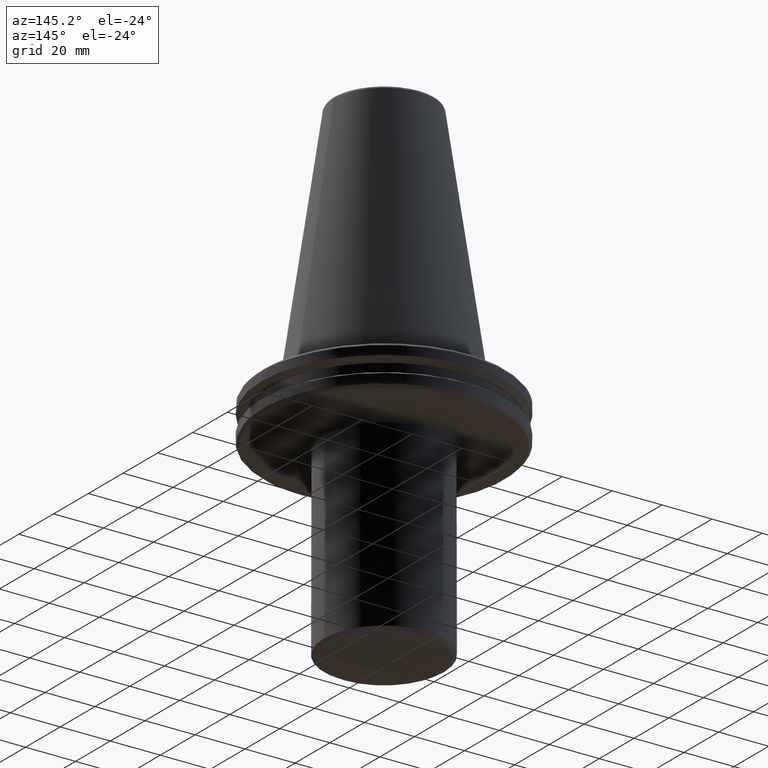
[diagram: clean part render]
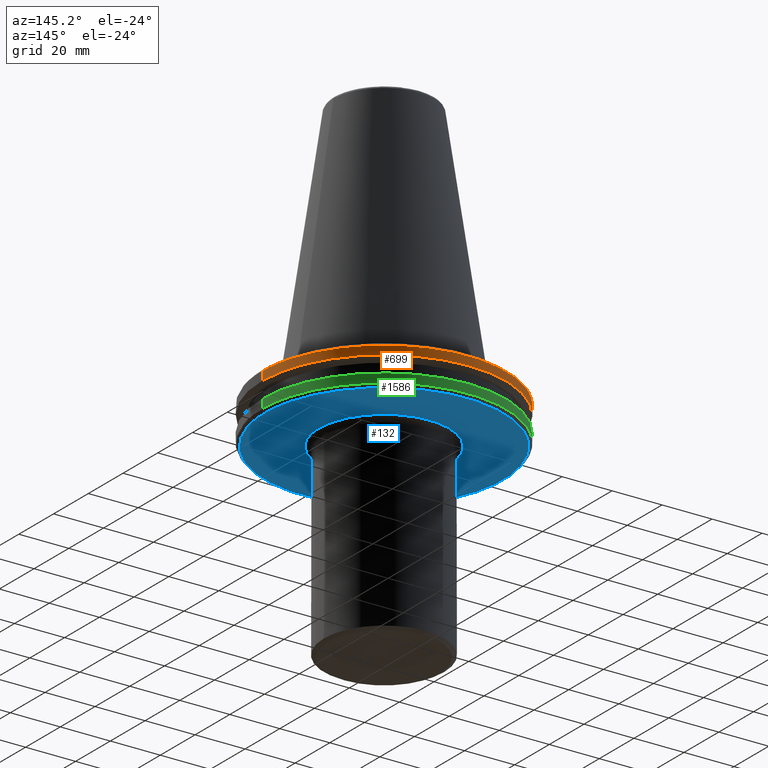
[diagram: same view with three faces highlighted in distinct colors, each labeled with its STEP entity id]
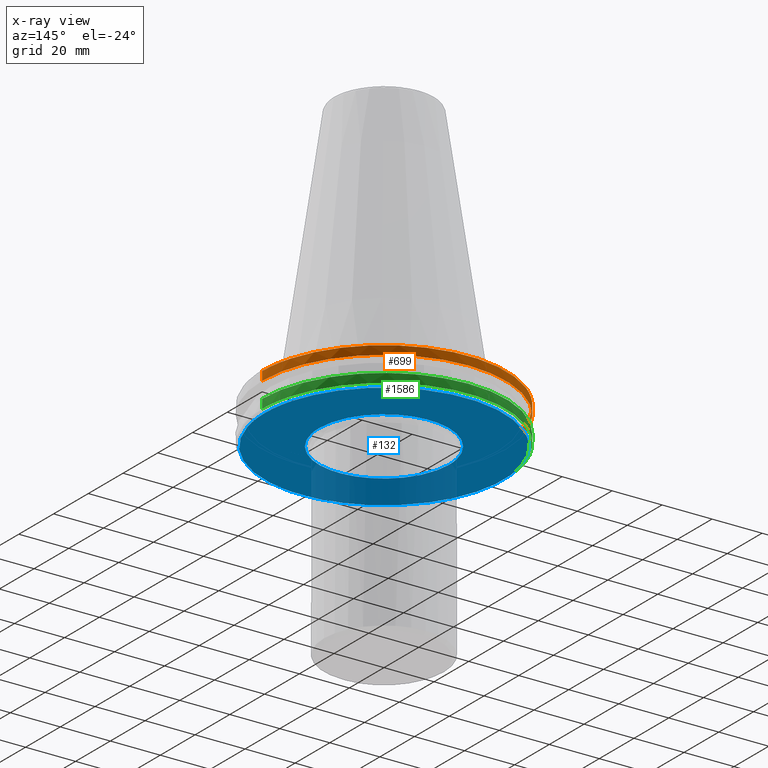
[diagram: x-ray of the same camera — body ghosted, the three highlighted faces saturated]
A machine part, auxiliary view with three faces highlighted in distinct colors.
The next image is the same camera in x-ray (body ghosted, the three faces saturated) — at least one of them is partly hidden behind the body in this view.
Their STEP definitions:

[orange] entity #699 — the highlighted cylindrical surface (partial cylindrical patch) has radius 48.75 mm, axis along (0, 0, 1).
#25 = CIRCLE ( 'NONE', #1399, 48.75000000000000000 ) ;
#52 = CARTESIAN_POINT ( 'NONE',  ( 0.0000000000000000000, 0.0000000000000000000, 113.5216080541959500 ) ) ;
#53 = CYLINDRICAL_SURFACE ( 'NONE', #2392, 48.75000000000000000 ) ;
#81 = CARTESIAN_POINT ( 'NONE',  ( 0.0000000000000000000, 0.0000000000000000000, -4.365685424949236700 ) ) ;
#126 = CIRCLE ( 'NONE', #1554, 48.75000000000000000 ) ;
#238 = VERTEX_POINT ( 'NONE', #2880 ) ;
#357 = DIRECTION ( 'NONE',  ( 1.000000000000000000, 0.0000000000000000000, 0.0000000000000000000 ) ) ;
#395 = DIRECTION ( 'NONE',  ( 0.0000000000000000000, 0.0000000000000000000, 1.000000000000000000 ) ) ;
#553 = CARTESIAN_POINT ( 'NONE',  ( -48.75000000000000000, 5.970153145843347100E-015, -4.365685424949236700 ) ) ;
#563 = CARTESIAN_POINT ( 'NONE',  ( -46.83796378645139000, 13.51915856623736200, -4.365685424949236700 ) ) ;
#577 = DIRECTION ( 'NONE',  ( 1.000000000000000000, -1.776356839400250500E-015, 0.0000000000000000000 ) ) ;
#581 = DIRECTION ( 'NONE',  ( 1.000000000000000000, 0.0000000000000000000, 0.0000000000000000000 ) ) ;
#605 = CARTESIAN_POINT ( 'NONE',  ( 46.87302845420868600, 13.39707817141269600, -4.365685424949236700 ) ) ;
#628 = ORIENTED_EDGE ( 'NONE', *, *, #1871, .T. ) ;
#630 = CARTESIAN_POINT ( 'NONE',  ( 0.0000000000000000000, 0.0000000000000000000, -4.365685424949236700 ) ) ;
#699 = ADVANCED_FACE ( 'NONE', ( #1671 ), #53, .T. ) ;
#735 = CIRCLE ( 'NONE', #2006, 48.75000000000000000 ) ;
#746 = LINE ( 'NONE', #1240, #1566 ) ;
#790 = ORIENTED_EDGE ( 'NONE', *, *, #2434, .F. ) ;
#828 = VERTEX_POINT ( 'NONE', #1339 ) ;
#865 = ORIENTED_EDGE ( 'NONE', *, *, #2680, .F. ) ;
#999 = DIRECTION ( 'NONE',  ( -0.0000000000000000000, -0.0000000000000000000, -1.000000000000000000 ) ) ;
#1126 = ORIENTED_EDGE ( 'NONE', *, *, #1597, .T. ) ;
#1130 = DIRECTION ( 'NONE',  ( 0.0000000000000000000, 0.0000000000000000000, 1.000000000000000000 ) ) ;
#1164 = DIRECTION ( 'NONE',  ( 0.0000000000000000000, 0.0000000000000000000, 1.000000000000000000 ) ) ;
#1237 = DIRECTION ( 'NONE',  ( -0.0000000000000000000, -0.0000000000000000000, 1.000000000000000000 ) ) ;
#1240 = CARTESIAN_POINT ( 'NONE',  ( -48.75000000000000000, 5.970153145843347100E-015, 113.5216080541959500 ) ) ;
#1339 = CARTESIAN_POINT ( 'NONE',  ( -38.42606537234849600, 30.00000000000000000, -4.365685424949236700 ) ) ;
#1352 = CARTESIAN_POINT ( 'NONE',  ( 0.0000000000000000000, 0.0000000000000000000, -4.365685424949236700 ) ) ;
#1364 = CIRCLE ( 'NONE', #1377, 48.75000000000000000 ) ;
#1377 = AXIS2_PLACEMENT_3D ( 'NONE', #630, #999, #2792 ) ;
#1388 = VERTEX_POINT ( 'NONE', #563 ) ;
#1399 = AXIS2_PLACEMENT_3D ( 'NONE', #81, #1830, #357 ) ;
#1518 = ORIENTED_EDGE ( 'NONE', *, *, #1693, .T. ) ;
#1538 = EDGE_LOOP ( 'NONE', ( #1518, #2142, #1994, #628, #790, #1126, #865, #2737 ) ) ;
#1554 = AXIS2_PLACEMENT_3D ( 'NONE', #2712, #1237, #2941 ) ;
#1566 = VECTOR ( 'NONE', #1164, 1000.000000000000000 ) ;
#1584 = DIRECTION ( 'NONE',  ( 1.000000000000000000, 0.0000000000000000000, 0.0000000000000000000 ) ) ;
#1585 = DIRECTION ( 'NONE',  ( 1.000000000000000000, 0.0000000000000000000, 0.0000000000000000000 ) ) ;
#1597 = EDGE_CURVE ( 'NONE', #2267, #2000, #735, .T. ) ;
#1671 = FACE_OUTER_BOUND ( 'NONE', #1538, .T. ) ;
#1680 = VECTOR ( 'NONE', #1130, 1000.000000000000000 ) ;
#1693 = EDGE_CURVE ( 'NONE', #1729, #2147, #1802, .T. ) ;
#1703 = LINE ( 'NONE', #2367, #1680 ) ;
#1729 = VERTEX_POINT ( 'NONE', #1892 ) ;
#1802 = CIRCLE ( 'NONE', #2234, 48.75000000000000000 ) ;
#1830 = DIRECTION ( 'NONE',  ( -0.0000000000000000000, -0.0000000000000000000, 1.000000000000000000 ) ) ;
#1871 = EDGE_CURVE ( 'NONE', #1388, #828, #1364, .T. ) ;
#1892 = CARTESIAN_POINT ( 'NONE',  ( 48.75000000000000000, 0.0000000000000000000, -7.852404735808352000 ) ) ;
#1924 = CARTESIAN_POINT ( 'NONE',  ( 0.0000000000000000000, 0.0000000000000000000, -7.852404735808352000 ) ) ;
#1927 = EDGE_CURVE ( 'NONE', #2147, #3146, #746, .T. ) ;
#1994 = ORIENTED_EDGE ( 'NONE', *, *, #2706, .F. ) ;
#2000 = VERTEX_POINT ( 'NONE', #605 ) ;
#2006 = AXIS2_PLACEMENT_3D ( 'NONE', #3046, #3136, #577 ) ;
#2142 = ORIENTED_EDGE ( 'NONE', *, *, #1927, .T. ) ;
#2147 = VERTEX_POINT ( 'NONE', #2343 ) ;
#2153 = CARTESIAN_POINT ( 'NONE',  ( -29.99999999999999600, 38.42606537234850400, -4.365685424949236700 ) ) ;
#2234 = AXIS2_PLACEMENT_3D ( 'NONE', #1924, #395, #581 ) ;
#2267 = VERTEX_POINT ( 'NONE', #2153 ) ;
#2343 = CARTESIAN_POINT ( 'NONE',  ( -48.75000000000000000, 5.970153145843347100E-015, -7.852404735808352000 ) ) ;
#2367 = CARTESIAN_POINT ( 'NONE',  ( 48.75000000000000000, 0.0000000000000000000, 113.5216080541959500 ) ) ;
#2392 = AXIS2_PLACEMENT_3D ( 'NONE', #52, #2911, #1584 ) ;
#2434 = EDGE_CURVE ( 'NONE', #2267, #828, #126, .T. ) ;
#2617 = CIRCLE ( 'NONE', #2757, 48.75000000000000000 ) ;
#2680 = EDGE_CURVE ( 'NONE', #238, #2000, #25, .T. ) ;
#2706 = EDGE_CURVE ( 'NONE', #1388, #3146, #2617, .T. ) ;
#2712 = CARTESIAN_POINT ( 'NONE',  ( 0.0000000000000000000, 0.0000000000000000000, -4.365685424949236700 ) ) ;
#2737 = ORIENTED_EDGE ( 'NONE', *, *, #2760, .F. ) ;
#2757 = AXIS2_PLACEMENT_3D ( 'NONE', #1352, #3035, #1585 ) ;
#2760 = EDGE_CURVE ( 'NONE', #1729, #238, #1703, .T. ) ;
#2792 = DIRECTION ( 'NONE',  ( 1.000000000000000000, 0.0000000000000000000, 0.0000000000000000000 ) ) ;
#2880 = CARTESIAN_POINT ( 'NONE',  ( 48.75000000000000000, 0.0000000000000000000, -4.365685424949236700 ) ) ;
#2911 = DIRECTION ( 'NONE',  ( 0.0000000000000000000, 0.0000000000000000000, 1.000000000000000000 ) ) ;
#2941 = DIRECTION ( 'NONE',  ( 1.000000000000000000, 0.0000000000000000000, 0.0000000000000000000 ) ) ;
#3035 = DIRECTION ( 'NONE',  ( -0.0000000000000000000, -0.0000000000000000000, 1.000000000000000000 ) ) ;
#3046 = CARTESIAN_POINT ( 'NONE',  ( 0.0000000000000000000, 0.0000000000000000000, -4.365685424949236700 ) ) ;
#3136 = DIRECTION ( 'NONE',  ( -0.0000000000000000000, -0.0000000000000000000, -1.000000000000000000 ) ) ;
#3146 = VERTEX_POINT ( 'NONE', #553 ) ;

[blue] entity #132 — the highlighted planar face has unit normal (0, 0, -1).
#1 = CARTESIAN_POINT ( 'NONE',  ( 24.15510002573701000, -9.619452403778328900, -19.10000000000000900 ) ) ;
#2 = CARTESIAN_POINT ( 'NONE',  ( 21.70034169271027500, -14.32125343353541400, -19.10000000000000900 ) ) ;
#6 = ORIENTED_EDGE ( 'NONE', *, *, #1456, .T. ) ;
#8 = CARTESIAN_POINT ( 'NONE',  ( -24.21314620663917300, -9.472396760741933300, -19.10000000000000900 ) ) ;
#9 = CARTESIAN_POINT ( 'NONE',  ( -25.53182933316255200, 4.912293730350294000, -19.10000000000000500 ) ) ;
#10 = CARTESIAN_POINT ( 'NONE',  ( -25.68462797524435700, -4.046109758467681100, -19.10000000000000900 ) ) ;
#11 = CARTESIAN_POINT ( 'NONE',  ( -25.49664686333754600, 5.093237319428173000, -19.10000000000000500 ) ) ;
#14 = CARTESIAN_POINT ( 'NONE',  ( 25.56141811611042400, -4.755469999200712100, -19.10000000000000500 ) ) ;
#16 = CARTESIAN_POINT ( 'NONE',  ( -24.43753361709862300, -8.881859368545983500, -19.10000000000000500 ) ) ;
#18 = CARTESIAN_POINT ( 'NONE',  ( -25.42306525121763300, 5.454192161913992400, -19.10000000000000100 ) ) ;
#20 = CARTESIAN_POINT ( 'NONE',  ( 9.374199852574992800, -24.25133649196072800, -19.10000000000000500 ) ) ;
#21 = CARTESIAN_POINT ( 'NONE',  ( -9.619452403779998700, -24.15510002573652700, -19.10000000000000100 ) ) ;
#22 = CARTESIAN_POINT ( 'NONE',  ( -25.26303533709827700, 6.172372504205887000, -19.10000000000000500 ) ) ;
#26 = CARTESIAN_POINT ( 'NONE',  ( -24.89150874934144000, 7.593815818070668300, -19.10000000000000900 ) ) ;
#29 = CARTESIAN_POINT ( 'NONE',  ( 25.26303533709541000, -6.172372504244667500, -19.10000000000000100 ) ) ;
#31 = CARTESIAN_POINT ( 'NONE',  ( -24.25133649196311200, -9.374199852569338600, -19.10000000000000100 ) ) ;
#32 = CARTESIAN_POINT ( 'NONE',  ( -24.48482865780448800, 8.786623165865046700, -19.10000000000000500 ) ) ;
#35 = AXIS2_PLACEMENT_3D ( 'NONE', #1828, #2235, #2574 ) ;
#39 = CARTESIAN_POINT ( 'NONE',  ( 25.53182933316208300, -4.912293730356553000, -19.10000000000000500 ) ) ;
#40 = CARTESIAN_POINT ( 'NONE',  ( -24.15510002573686100, 9.619452403780187000, -19.10000000000000900 ) ) ;
#42 = CARTESIAN_POINT ( 'NONE',  ( -24.13390533470555300, 9.672518291532702200, -19.10000000000000500 ) ) ;
#45 = CARTESIAN_POINT ( 'NONE',  ( -24.09285425758565000, 9.774334363304969700, -19.10000000000000100 ) ) ;
#47 = CARTESIAN_POINT ( 'NONE',  ( 23.57398803259107500, -10.98246026895653800, -19.10000000000000500 ) ) ;
#48 = CARTESIAN_POINT ( 'NONE',  ( -24.03081705770352600, 9.926818699811638800, -19.10000000000000500 ) ) ;
#51 = CARTESIAN_POINT ( 'NONE',  ( -26.00000000000000700, 0.0000000000000000000, -19.10000000000000500 ) ) ;
#55 = CARTESIAN_POINT ( 'NONE',  ( -23.88283950189598300, 10.28093708693172400, -19.10000000000000500 ) ) ;
#56 = CARTESIAN_POINT ( 'NONE',  ( -23.57398803261721600, 10.98246026892338500, -19.10000000000000100 ) ) ;
#59 = CARTESIAN_POINT ( 'NONE',  ( -22.90469966340501500, 12.35865226391256900, -19.10000000000000100 ) ) ;
#61 = CARTESIAN_POINT ( 'NONE',  ( -22.24259175152940300, 13.49220934134198800, -19.10000000000000900 ) ) ;
#62 = CARTESIAN_POINT ( 'NONE',  ( -21.73183901294466100, 14.27340635343069100, -19.10000000000000100 ) ) ;
#66 = CARTESIAN_POINT ( 'NONE',  ( -21.70034169270702800, 14.32125343353973800, -19.10000000000000500 ) ) ;
#69 = CARTESIAN_POINT ( 'NONE',  ( -21.63838034151692500, 14.41471094785306300, -19.10000000000000500 ) ) ;
#71 = CARTESIAN_POINT ( 'NONE',  ( -21.54501856251954100, 14.55455488811033500, -19.09999999999999800 ) ) ;
#74 = CARTESIAN_POINT ( 'NONE',  ( -21.32423614604032700, 14.87846109688831800, -19.10000000000000500 ) ) ;
#75 = CARTESIAN_POINT ( 'NONE',  ( -20.87091825114033500, 15.51668824048838000, -19.10000000000000500 ) ) ;
#79 = CARTESIAN_POINT ( 'NONE',  ( -19.91727021357427000, 16.75480143186482000, -19.10000000000000500 ) ) ;
#85 = CARTESIAN_POINT ( 'NONE',  ( -19.01926518520435400, 17.75031371734690200, -19.10000000000000100 ) ) ;
#92 = CARTESIAN_POINT ( 'NONE',  ( -17.11579856214202500, 19.65370149785693600, -19.10000000000000900 ) ) ;
#94 = CARTESIAN_POINT ( 'NONE',  ( -15.72951935118698000, 20.77990877389524400, -19.10000000000000500 ) ) ;
#100 = CARTESIAN_POINT ( 'NONE',  ( -14.18051403291453700, 21.79256999536587700, -19.10000000000000500 ) ) ;
#101 = CARTESIAN_POINT ( 'NONE',  ( -14.13542969947152600, 21.82183815495291100, -19.10000000000000900 ) ) ;
#104 = CARTESIAN_POINT ( 'NONE',  ( -14.04316786996765900, 21.88133148954932100, -19.10000000000000500 ) ) ;
#105 = CARTESIAN_POINT ( 'NONE',  ( -13.90453718475016800, 21.97010996277238300, -19.10000000000000100 ) ) ;
#108 = CARTESIAN_POINT ( 'NONE',  ( -13.57939999917757000, 22.17402903292536500, -19.10000000000000900 ) ) ;
#111 = CARTESIAN_POINT ( 'NONE',  ( -12.92246328110510400, 22.56894437042785700, -19.10000000000000500 ) ) ;
#113 = CARTESIAN_POINT ( 'NONE',  ( -11.58194045725128500, 23.30708383421902900, -19.10000000000000500 ) ) ;
#116 = CARTESIAN_POINT ( 'NONE',  ( -10.38723622930410400, 23.85116129824497500, -19.10000000000000900 ) ) ;
#117 = CARTESIAN_POINT ( 'NONE',  ( -30.00005778855096100, 36.93605622581585400, -19.10000000000000500 ) ) ;
#119 = ORIENTED_EDGE ( 'NONE', *, *, #2443, .F. ) ;
#120 = CARTESIAN_POINT ( 'NONE',  ( -9.519414087315238900, 24.19470423570932400, -19.10000000000000100 ) ) ;
#122 = CARTESIAN_POINT ( 'NONE',  ( -9.472396760747198400, 24.21314620663746800, -19.10000000000000500 ) ) ;
#124 = CARTESIAN_POINT ( 'NONE',  ( -9.374199852579604200, 24.25133649195979800, -19.10000000000000500 ) ) ;
#125 = CARTESIAN_POINT ( 'NONE',  ( 40.17757738671358700, -25.49926469668890400, -19.10000000000000900 ) ) ;
#127 = CARTESIAN_POINT ( 'NONE',  ( -9.226773270022118100, 24.30816182625133600, -19.10000000000000100 ) ) ;
#128 = CARTESIAN_POINT ( 'NONE',  ( -24.51896949215701900, 40.79270656059319600, -19.10000000000000100 ) ) ;
#130 = CARTESIAN_POINT ( 'NONE',  ( -8.881859368578679100, 24.43753361708805000, -19.10000000000000500 ) ) ;
#132 = ADVANCED_FACE ( 'NONE', ( #1000, #2086 ), #2803, .T. ) ;
#134 = CARTESIAN_POINT ( 'NONE',  ( -8.188357397121219300, 24.68339457538708000, -19.10000000000000500 ) ) ;
#136 = CARTESIAN_POINT ( 'NONE',  ( 32.84777691328536500, -34.53116215255221300, -19.10000000000000900 ) ) ;
#137 = CARTESIAN_POINT ( 'NONE',  ( -6.786656779923987400, 25.12358599848766300, -19.09999999999999800 ) ) ;
#138 = CARTESIAN_POINT ( 'NONE',  ( -12.76496267438223200, 45.88395211695184600, -19.09999999999999800 ) ) ;
#139 = CARTESIAN_POINT ( 'NONE',  ( -5.560004809270978400, 25.41255494372105200, -19.10000000000000900 ) ) ;
#141 = CARTESIAN_POINT ( 'NONE',  ( -4.705134192510913100, 25.57073284867812600, -19.10000000000000100 ) ) ;
#143 = CARTESIAN_POINT ( 'NONE',  ( 15.85766042695990100, -44.86641853677324600, -19.10000000000000500 ) ) ;
#147 = CARTESIAN_POINT ( 'NONE',  ( -4.682158347204554300, 25.57494818588518700, -19.10000000000000100 ) ) ;
#148 = CARTESIAN_POINT ( 'NONE',  ( 2.795956690231360800, 47.50226303628877400, -19.10000000000000100 ) ) ;
#154 = CARTESIAN_POINT ( 'NONE',  ( -4.633267867649633900, 25.58385079740399300, -19.09999999999999800 ) ) ;
#156 = CARTESIAN_POINT ( 'NONE',  ( 7.367970511328267400, -47.01043969523493600, -19.10000000000000100 ) ) ;
#158 = CARTESIAN_POINT ( 'NONE',  ( -4.559922684273546500, 25.59709871914677100, -19.10000000000000500 ) ) ;
#159 = CARTESIAN_POINT ( 'NONE',  ( 16.66931579828063500, 44.58704690948568600, -19.10000000000000500 ) ) ;
#163 = CARTESIAN_POINT ( 'NONE',  ( -4.388717674756703600, 25.62726856779846700, -19.10000000000000900 ) ) ;
#168 = CARTESIAN_POINT ( 'NONE',  ( -4.046042662499103500, 25.68464039010945800, -19.10000000000000500 ) ) ;
#171 = CARTESIAN_POINT ( 'NONE',  ( -10.47107321257774600, -46.44890181901310200, -19.10000000000000100 ) ) ;
#172 = CARTESIAN_POINT ( 'NONE',  ( -3.359632665088341700, 25.78751253476187300, -19.10000000000000900 ) ) ;
#173 = CARTESIAN_POINT ( 'NONE',  ( 24.81440725883085800, 40.60206258293646200, -19.10000000000000500 ) ) ;
#178 = CARTESIAN_POINT ( 'NONE',  ( -1.982572778684461400, 25.94577082418838600, -19.10000000000000500 ) ) ;
#179 = CARTESIAN_POINT ( 'NONE',  ( -0.7949673476257092000, 26.00001621533401400, -19.10000000000000900 ) ) ;
#180 = CARTESIAN_POINT ( 'NONE',  ( -21.86840944257202700, -42.26164196384021900, -19.10000000000000100 ) ) ;
#182 = CARTESIAN_POINT ( 'NONE',  ( 1.589934695251411300, 25.99996756933200000, -19.10000000000000500 ) ) ;
#183 = CARTESIAN_POINT ( 'NONE',  ( -25.78749125213598200, -3.359747686748747200, -19.10000000000000500 ) ) ;
#184 = CARTESIAN_POINT ( 'NONE',  ( 3.167653936878935800, 25.85528074787255200, -19.10000000000000900 ) ) ;
#185 = CARTESIAN_POINT ( 'NONE',  ( 37.80367910322554800, 28.90003077334454300, -19.10000000000000900 ) ) ;
#186 = CARTESIAN_POINT ( 'NONE',  ( 4.755467259994475200, 25.56141862306466800, -19.10000000000000900 ) ) ;
#188 = CARTESIAN_POINT ( 'NONE',  ( 4.782859622600342100, 25.55630867551359800, -19.10000000000000500 ) ) ;
#189 = CARTESIAN_POINT ( 'NONE',  ( 4.834646584782392500, 25.54656289103661100, -19.10000000000000900 ) ) ;
#190 = CARTESIAN_POINT ( 'NONE',  ( -36.86050155004882400, -30.14317060407181300, -19.10000000000000100 ) ) ;
#191 = CARTESIAN_POINT ( 'NONE',  ( 4.912293730352950600, 25.53182933316151400, -19.10000000000000100 ) ) ;
#192 = CARTESIAN_POINT ( 'NONE',  ( -26.00000000000000700, 0.0000000000000000000, -19.10000000000000500 ) ) ;
#194 = CARTESIAN_POINT ( 'NONE',  ( 43.77572545363726400, 18.65419956364984300, -19.10000000000000100 ) ) ;
#197 = CARTESIAN_POINT ( 'NONE',  ( 5.093237319433305800, 25.49664686333550600, -19.09999999999999800 ) ) ;
#202 = CARTESIAN_POINT ( 'NONE',  ( 5.454192161923581100, 25.42306525121384900, -19.10000000000000500 ) ) ;
#207 = CARTESIAN_POINT ( 'NONE',  ( 6.172372504222311200, 25.26303533709177200, -19.10000000000000500 ) ) ;
#209 = CARTESIAN_POINT ( 'NONE',  ( 7.593815818092556600, 24.89150874933277200, -19.10000000000000500 ) ) ;
#212 = CARTESIAN_POINT ( 'NONE',  ( 8.786623165877546900, 24.48482865779955000, -19.10000000000001200 ) ) ;
#214 = CIRCLE ( 'NONE', #1535, 47.58440623600370100 ) ;
#215 = CARTESIAN_POINT ( 'NONE',  ( 9.619452403779403600, 24.15510002573717000, -19.09999999999999800 ) ) ;
#216 = CARTESIAN_POINT ( 'NONE',  ( 9.672518291530421300, 24.13390533470645100, -19.10000000000000100 ) ) ;
#217 = CARTESIAN_POINT ( 'NONE',  ( 9.774334363300514600, 24.09285425758741900, -19.10000000000000500 ) ) ;
#222 = CARTESIAN_POINT ( 'NONE',  ( 9.926818699804027100, 24.03081705770654300, -19.10000000000000100 ) ) ;
#223 = CARTESIAN_POINT ( 'NONE',  ( 0.0000000000000000000, 0.0000000000000000000, -19.10000000000000500 ) ) ;
#229 = CARTESIAN_POINT ( 'NONE',  ( 10.28093708691752000, 23.88283950190161100, -19.10000000000000500 ) ) ;
#234 = CARTESIAN_POINT ( 'NONE',  ( 10.98246026889901800, 23.57398803262688200, -19.10000000000000900 ) ) ;
#237 = CARTESIAN_POINT ( 'NONE',  ( -45.81650991385544800, 12.85002475276266100, -19.10000000000000500 ) ) ;
#239 = CARTESIAN_POINT ( 'NONE',  ( 12.35865226388009800, 22.90469966341788000, -19.10000000000000900 ) ) ;
#242 = CARTESIAN_POINT ( 'NONE',  ( 13.49220934132342500, 22.24259175153674700, -19.10000000000001200 ) ) ;
#251 = CARTESIAN_POINT ( 'NONE',  ( -43.22351251081048000, -19.89966219404797700, -19.10000000000000100 ) ) ;
#253 = CARTESIAN_POINT ( 'NONE',  ( 14.27340635343185200, 21.73183901294420700, -19.10000000000000500 ) ) ;
#254 = CARTESIAN_POINT ( 'NONE',  ( 14.32125343353594400, 21.70034169271010800, -19.09999999999999800 ) ) ;
#256 = CARTESIAN_POINT ( 'NONE',  ( -25.12358599851181400, -6.786656779849270300, -19.10000000000000500 ) ) ;
#258 = CARTESIAN_POINT ( 'NONE',  ( 14.41471094784565400, 21.63838034152293200, -19.10000000000000500 ) ) ;
#262 = CARTESIAN_POINT ( 'NONE',  ( 14.55455488809768700, 21.54501856252983000, -19.10000000000000500 ) ) ;
#267 = CARTESIAN_POINT ( 'NONE',  ( 14.87846109686471200, 21.32423614605949800, -19.10000000000000500 ) ) ;
#268 = CARTESIAN_POINT ( 'NONE',  ( 15.51668824044791400, 20.87091825117321200, -19.10000000000000500 ) ) ;
#278 = CARTESIAN_POINT ( 'NONE',  ( 16.75480143181085100, 19.91727021361812400, -19.10000000000000900 ) ) ;
#282 = CARTESIAN_POINT ( 'NONE',  ( -26.00000000000000700, 0.0000000000000000000, -19.10000000000000500 ) ) ;
#287 = CARTESIAN_POINT ( 'NONE',  ( 17.75031371731607200, 19.01926518522941500, -19.10000000000001200 ) ) ;
#292 = CARTESIAN_POINT ( 'NONE',  ( 19.65370149791861500, 17.11579856209190700, -19.10000000000000500 ) ) ;
#294 = CARTESIAN_POINT ( 'NONE',  ( 20.77990877390448100, 15.72951935118932100, -19.10000000000001200 ) ) ;
#297 = CARTESIAN_POINT ( 'NONE',  ( 21.79256999536558200, 14.18051403291446800, -19.10000000000000500 ) ) ;
#302 = CARTESIAN_POINT ( 'NONE',  ( 21.82183815495503500, 14.13542969946727400, -19.10000000000000100 ) ) ;
#305 = CARTESIAN_POINT ( 'NONE',  ( 21.88133148955348500, 14.04316786995936500, -19.10000000000000500 ) ) ;
#306 = CARTESIAN_POINT ( 'NONE',  ( 21.97010996277948900, 13.90453718473601300, -19.10000000000000500 ) ) ;
#309 = CARTESIAN_POINT ( 'NONE',  ( 22.17402903293860600, 13.57939999915113000, -19.10000000000000500 ) ) ;
#312 = CARTESIAN_POINT ( 'NONE',  ( 22.56894437045057000, 12.92246328105980000, -19.10000000000000900 ) ) ;
#318 = CARTESIAN_POINT ( 'NONE',  ( 23.30708383424930800, 11.58194045719085400, -19.10000000000000500 ) ) ;
#320 = CARTESIAN_POINT ( 'NONE',  ( 23.85116129826227600, 10.38723622926957200, -19.09999999999999800 ) ) ;
#323 = CARTESIAN_POINT ( 'NONE',  ( 24.19470423570825100, 9.519414087317391800, -19.10000000000000100 ) ) ;
#328 = CARTESIAN_POINT ( 'NONE',  ( 24.21314620663857700, 9.472396760743322400, -19.10000000000000900 ) ) ;
#331 = CARTESIAN_POINT ( 'NONE',  ( 24.25133649196196500, 9.374199852572035100, -19.10000000000000500 ) ) ;
#342 = CARTESIAN_POINT ( 'NONE',  ( 24.30816182625503800, 9.226773270009196900, -19.10000000000000500 ) ) ;
#344 = CARTESIAN_POINT ( 'NONE',  ( 24.43753361709493200, 8.881859368554568600, -19.10000000000000900 ) ) ;
#346 = CARTESIAN_POINT ( 'NONE',  ( 24.68339457539887500, 8.188357397079881700, -19.10000000000000500 ) ) ;
#349 = CARTESIAN_POINT ( 'NONE',  ( 25.12358599850338700, 6.786656779868874200, -19.10000000000000900 ) ) ;
#352 = CARTESIAN_POINT ( 'NONE',  ( 25.41255494373002900, 5.560004809239478300, -19.10000000000000100 ) ) ;
#360 = CARTESIAN_POINT ( 'NONE',  ( -25.59709528288945900, -4.559941255479133200, -19.10000000000000500 ) ) ;
#363 = CARTESIAN_POINT ( 'NONE',  ( 23.88283950188073800, -10.28093708695106300, -19.10000000000000500 ) ) ;
#364 = CARTESIAN_POINT ( 'NONE',  ( 25.57073284867784200, 4.705134192511904300, -19.10000000000000500 ) ) ;
#367 = CARTESIAN_POINT ( 'NONE',  ( 25.57494718034444900, 4.682163781636559100, -19.10000000000000500 ) ) ;
#369 = CARTESIAN_POINT ( 'NONE',  ( -20.77990877397397500, -15.72951935111981400, -19.10000000000000900 ) ) ;
#370 = CARTESIAN_POINT ( 'NONE',  ( 25.58384881007546200, 4.633278608141228700, -19.10000000000000500 ) ) ;
#378 = CARTESIAN_POINT ( 'NONE',  ( 25.59709528288945900, 4.559941255482106800, -19.10000000000000500 ) ) ;
#379 = CARTESIAN_POINT ( 'NONE',  ( 25.62726191697787900, 4.388753619031328800, -19.10000000000001200 ) ) ;
#384 = CARTESIAN_POINT ( 'NONE',  ( 25.68462797524436100, 4.046109758478410300, -19.10000000000001200 ) ) ;
#385 = CARTESIAN_POINT ( 'NONE',  ( 25.78749125213599000, 3.359747686767132100, -19.10000000000000500 ) ) ;
#388 = CARTESIAN_POINT ( 'NONE',  ( 25.94574244735386500, 1.982726140922852000, -19.10000000000000500 ) ) ;
#394 = CARTESIAN_POINT ( 'NONE',  ( 26.00000000000001100, 0.7950549831905049400, -19.10000000000000500 ) ) ;
#396 = CARTESIAN_POINT ( 'NONE',  ( 44.91986629715703600, -15.78375219148240100, -19.10000000000000900 ) ) ;
#398 = CARTESIAN_POINT ( 'NONE',  ( -25.62726191697787200, -4.388753619025575100, -19.10000000000000100 ) ) ;
#403 = CARTESIAN_POINT ( 'NONE',  ( 26.00000000000000700, 3.184081677783118600E-015, -19.10000000000000500 ) ) ;
#404 = CARTESIAN_POINT ( 'NONE',  ( 39.74239188769973200, -26.16898826911618800, -19.10000000000000500 ) ) ;
#408 = CARTESIAN_POINT ( 'NONE',  ( -21.74333102685920200, 42.33104545207474700, -19.10000000000000100 ) ) ;
#415 = CARTESIAN_POINT ( 'NONE',  ( 27.68499332084196100, -38.72449491407407900, -19.10000000000000900 ) ) ;
#417 = CARTESIAN_POINT ( 'NONE',  ( -7.875121571891069600, 46.93882781498823000, -19.10000000000000100 ) ) ;
#429 = CARTESIAN_POINT ( 'NONE',  ( 15.08070599188592600, -45.13143456946083600, -19.10000000000000500 ) ) ;
#431 = CARTESIAN_POINT ( 'NONE',  ( -25.57073284867768900, -4.705134192512248100, -19.10000000000000500 ) ) ;
#432 = CARTESIAN_POINT ( 'NONE',  ( 4.020051978080799900, 47.42429636998678400, -19.10000000000000900 ) ) ;
#436 = CARTESIAN_POINT ( 'NONE',  ( 2.457672413238296500, -47.58428782218786800, -19.10000000000000500 ) ) ;
#442 = CARTESIAN_POINT ( 'NONE',  ( 18.98643513276526600, 43.63351049520797900, -19.10000000000000500 ) ) ;
#446 = CARTESIAN_POINT ( 'NONE',  ( -25.55630867551390400, 4.782859622599562300, -19.10000000000001200 ) ) ;
#448 = CARTESIAN_POINT ( 'NONE',  ( -13.70206127222428600, -45.57086505245658300, -19.10000000000000500 ) ) ;
#452 = CARTESIAN_POINT ( 'NONE',  ( 27.00962507593165500, 39.19796925020254000, -19.10000000000000900 ) ) ;
#460 = CARTESIAN_POINT ( 'NONE',  ( -24.37778840664680400, -40.95242410592162900, -19.10000000000000900 ) ) ;
#466 = CARTESIAN_POINT ( 'NONE',  ( 38.70033565573794500, 27.70449947741241200, -19.10000000000000100 ) ) ;
#475 = CARTESIAN_POINT ( 'NONE',  ( -38.91719004523266500, -27.38454355135307200, -19.10000000000000900 ) ) ;
#480 = CARTESIAN_POINT ( 'NONE',  ( 43.89443439609017600, 18.37251416061661800, -19.10000000000000100 ) ) ;
#488 = CARTESIAN_POINT ( 'NONE',  ( -26.00000000000001100, -0.7950549831764985900, -19.10000000000000900 ) ) ;
#500 = AXIS2_PLACEMENT_3D ( 'NONE', #1590, #791, #1663 ) ;
#503 = DIRECTION ( 'NONE',  ( 1.000000000000000000, 0.0000000000000000000, 0.0000000000000000000 ) ) ;
#530 = CARTESIAN_POINT ( 'NONE',  ( -43.27416862306094500, -19.78925870223190500, -19.10000000000000100 ) ) ;
#538 = CARTESIAN_POINT ( 'NONE',  ( -36.93605622581585400, 30.00005778855096500, -19.10000000000000500 ) ) ;
#548 = CARTESIAN_POINT ( 'NONE',  ( -25.41255494373485400, -5.560004809228273000, -19.10000000000000100 ) ) ;
#585 = CARTESIAN_POINT ( 'NONE',  ( -25.94574244735387200, -1.982726140898343200, -19.10000000000000500 ) ) ;
#618 = ORIENTED_EDGE ( 'NONE', *, *, #1864, .F. ) ;
#650 = CARTESIAN_POINT ( 'NONE',  ( 25.55630867551375800, -4.782859622601390200, -19.10000000000000900 ) ) ;
#654 = CARTESIAN_POINT ( 'NONE',  ( 43.72681445220428700, -18.77235708420022700, -19.10000000000000500 ) ) ;
#666 = CARTESIAN_POINT ( 'NONE',  ( 39.61125381757045000, -26.36706712308016500, -19.10000000000000500 ) ) ;
#668 = CARTESIAN_POINT ( 'NONE',  ( -30.00005778855096100, 36.93605622581585400, -19.10000000000000500 ) ) ;
#669 = CARTESIAN_POINT ( 'NONE',  ( -20.64756274229976500, 42.87144079788518500, -19.10000000000000500 ) ) ;
#678 = CARTESIAN_POINT ( 'NONE',  ( 24.05664872149412400, -41.06504018283744300, -19.10000000000000500 ) ) ;
#683 = CARTESIAN_POINT ( 'NONE',  ( -4.653575368256655400, 47.36089933689269300, -19.10000000000000500 ) ) ;
#688 = CARTESIAN_POINT ( 'NONE',  ( 14.84463130699052300, -45.20962530651279800, -19.10000000000000500 ) ) ;
#691 = CARTESIAN_POINT ( 'NONE',  ( 7.170780937423438100, 47.04540001752668800, -19.10000000000000900 ) ) ;
#702 = CARTESIAN_POINT ( 'NONE',  ( -3.066716835733812800, -47.51334310158582500, -19.09999999999999800 ) ) ;
#705 = CARTESIAN_POINT ( 'NONE',  ( 19.53216097461157500, 43.39084235519819500, -19.10000000000000100 ) ) ;
#706 = CIRCLE ( 'NONE', #3079, 47.58440623600370100 ) ;
#707 = VERTEX_POINT ( 'NONE', #2910 ) ;
#715 = CARTESIAN_POINT ( 'NONE',  ( -14.46442323065742200, -45.33270475704077300, -19.10000000000000100 ) ) ;
#718 = CARTESIAN_POINT ( 'NONE',  ( 29.00433579293829600, 37.72372139860291900, -19.10000000000000500 ) ) ;
#727 = CARTESIAN_POINT ( 'NONE',  ( -29.80952097295646700, -37.11384944854528100, -19.10000000000000900 ) ) ;
#728 = CARTESIAN_POINT ( 'NONE',  ( 21.73183901294590500, -14.27340635342911000, -19.10000000000000500 ) ) ;
#731 = CARTESIAN_POINT ( 'NONE',  ( 40.48202334443599400, 25.01817877471203400, -19.10000000000000500 ) ) ;
#736 = CARTESIAN_POINT ( 'NONE',  ( -39.38217416851243500, -26.70802196479191400, -19.10000000000000500 ) ) ;
#739 = CARTESIAN_POINT ( 'NONE',  ( 44.67508573890287200, 16.49425599764650100, -19.10000000000000500 ) ) ;
#754 = VERTEX_POINT ( 'NONE', #1271 ) ;
#771 = CARTESIAN_POINT ( 'NONE',  ( -40.75990645542658800, 24.76850955879668000, -19.10000000000000500 ) ) ;
#788 = CARTESIAN_POINT ( 'NONE',  ( -45.15259770387601200, -15.21685122225496800, -19.10000000000000500 ) ) ;
#791 = DIRECTION ( 'NONE',  ( -0.0000000000000000000, -0.0000000000000000000, 1.000000000000000000 ) ) ;
#795 = CARTESIAN_POINT ( 'NONE',  ( 47.58440623600370100, 0.0000000000000000000, -19.10000000000000500 ) ) ;
#798 = B_SPLINE_CURVE_WITH_KNOTS ( 'NONE', 3,
 ( #237, #1724, #2258, #771, #2499, #1020 ),
 .UNSPECIFIED., .F., .F.,
 ( 4, 2, 4 ),
 ( 0.0000000000000000000, 0.5000000000000000000, 1.000000000000000000 ),
 .UNSPECIFIED. ) ;
#805 = CARTESIAN_POINT ( 'NONE',  ( 19.91727021362055400, -16.75480143180335400, -19.10000000000000100 ) ) ;
#856 = CARTESIAN_POINT ( 'NONE',  ( -10.98246026898200300, -23.57398803258518400, -19.10000000000000500 ) ) ;
#873 = CARTESIAN_POINT ( 'NONE',  ( -14.27340635342790500, -21.73183901294618900, -19.10000000000000900 ) ) ;
#906 = CARTESIAN_POINT ( 'NONE',  ( 43.40111667457645700, -19.50949723452300300, -19.10000000000000500 ) ) ;
#909 = CARTESIAN_POINT ( 'NONE',  ( -28.11991331442331800, 38.40755504123007600, -19.10000000000000500 ) ) ;
#915 = CARTESIAN_POINT ( 'NONE',  ( 0.0000000000000000000, 0.0000000000000000000, -19.10000000000000500 ) ) ;
#916 = CARTESIAN_POINT ( 'NONE',  ( 37.67621538465288500, -29.11717796348958100, -19.10000000000000900 ) ) ;
#919 = CARTESIAN_POINT ( 'NONE',  ( -20.31820910729746600, 43.02850999358383200, -19.10000000000000500 ) ) ;
#928 = CARTESIAN_POINT ( 'NONE',  ( 22.52972475072373700, -41.91334347041177500, -19.10000000000000500 ) ) ;
#930 = CARTESIAN_POINT ( 'NONE',  ( 26.00000000000000700, 3.184081677783118600E-015, -19.10000000000000500 ) ) ;
#931 = CARTESIAN_POINT ( 'NONE',  ( -3.406815653544069900, 47.46286484761140700, -19.10000000000000900 ) ) ;
#941 = CARTESIAN_POINT ( 'NONE',  ( 11.71142353891907500, -46.15177667591264300, -19.10000000000000500 ) ) ;
#942 = CARTESIAN_POINT ( 'NONE',  ( 26.00000000000000700, 3.184081677783118600E-015, -19.10000000000000500 ) ) ;
#946 = CARTESIAN_POINT ( 'NONE',  ( 8.435609072310132500, 46.83090646071303100, -19.09999999999999800 ) ) ;
#953 = CARTESIAN_POINT ( 'NONE',  ( -6.266551039190169100, -47.17166706347747900, -19.10000000000000500 ) ) ;
#954 = CARTESIAN_POINT ( 'NONE',  ( 24.09285425758087800, -9.774334363311028900, -19.10000000000000500 ) ) ;
#956 = CARTESIAN_POINT ( 'NONE',  ( 19.69421577141492800, 43.31753143489083200, -19.10000000000000500 ) ) ;
#962 = CARTESIAN_POINT ( 'NONE',  ( -14.69055632917383400, -45.25992943446075900, -19.10000000000000500 ) ) ;
#963 = DIRECTION ( 'NONE',  ( 1.000000000000000000, 0.0000000000000000000, 0.0000000000000000000 ) ) ;
#964 = CARTESIAN_POINT ( 'NONE',  ( 29.58979462928633500, 37.26625125388741100, -19.10000000000000100 ) ) ;
#974 = CARTESIAN_POINT ( 'NONE',  ( -33.04293178105575600, -34.25236535246320800, -19.10000000000000500 ) ) ;
#975 = VERTEX_POINT ( 'NONE', #998 ) ;
#977 = CARTESIAN_POINT ( 'NONE',  ( 41.11685396623421000, 23.95176649573039300, -19.10000000000000900 ) ) ;
#981 = CARTESIAN_POINT ( 'NONE',  ( -39.52121115034933800, -26.50183329894741700, -19.10000000000000500 ) ) ;
#986 = CARTESIAN_POINT ( 'NONE',  ( 45.81650991385544800, 12.85002475276267100, -19.10000000000000500 ) ) ;
#998 = CARTESIAN_POINT ( 'NONE',  ( -45.81650991385551200, -12.85002475276243100, -19.10000000000000500 ) ) ;
#1000 = FACE_OUTER_BOUND ( 'NONE', #1286, .T. ) ;
#1012 = ORIENTED_EDGE ( 'NONE', *, *, #2107, .T. ) ;
#1013 = CARTESIAN_POINT ( 'NONE',  ( -14.32125343353943200, -21.70034169270664000, -19.10000000000000900 ) ) ;
#1020 = CARTESIAN_POINT ( 'NONE',  ( -36.93605622581585400, 30.00005778855096500, -19.10000000000000500 ) ) ;
#1043 = VERTEX_POINT ( 'NONE', #930 ) ;
#1048 = CARTESIAN_POINT ( 'NONE',  ( 25.85531319294364700, -3.167478627679282800, -19.10000000000000500 ) ) ;
#1073 = CARTESIAN_POINT ( 'NONE',  ( 22.24259175150946200, -13.49220934136726100, -19.10000000000000100 ) ) ;
#1151 = CARTESIAN_POINT ( 'NONE',  ( 43.32195833354377600, -19.68441884222573200, -19.10000000000000100 ) ) ;
#1153 = CARTESIAN_POINT ( 'NONE',  ( -26.05107236584310100, 39.82096775280908200, -19.10000000000000500 ) ) ;
#1161 = CARTESIAN_POINT ( 'NONE',  ( 35.45219036235576500, -31.74276426336269800, -19.10000000000000500 ) ) ;
#1165 = CARTESIAN_POINT ( 'NONE',  ( -17.93959071322330000, 44.09276272953813700, -19.10000000000000500 ) ) ;
#1167 = CARTESIAN_POINT ( 'NONE',  ( 21.54501856253038700, -14.55455488809592500, -19.10000000000000500 ) ) ;
#1175 = CARTESIAN_POINT ( 'NONE',  ( 22.16184123277559300, -42.10851106048075800, -19.10000000000000100 ) ) ;
#1178 = CARTESIAN_POINT ( 'NONE',  ( -1.915310706964912900, 47.55614425136573000, -19.10000000000000900 ) ) ;
#1183 = CARTESIAN_POINT ( 'NONE',  ( 8.433288832968015600, -46.83300009518482900, -19.10000000000000900 ) ) ;
#1184 = CARTESIAN_POINT ( 'NONE',  ( 8.736225942364694000, 46.77551714111499600, -19.10000000000000900 ) ) ;
#1193 = CARTESIAN_POINT ( 'NONE',  ( -7.064305541282756500, -47.05712494446967000, -19.10000000000000900 ) ) ;
#1195 = CARTESIAN_POINT ( 'NONE',  ( 21.95345228552716700, 42.23734015881094500, -19.10000000000000500 ) ) ;
#1199 = ORIENTED_EDGE ( 'NONE', *, *, #2628, .T. ) ;
#1202 = CARTESIAN_POINT ( 'NONE',  ( -17.86104397993747000, -44.13944229614414600, -19.10000000000000900 ) ) ;
#1205 = CARTESIAN_POINT ( 'NONE',  ( 32.82499425408121100, 34.50792617421171100, -19.10000000000000500 ) ) ;
#1212 = CARTESIAN_POINT ( 'NONE',  ( -34.27205937641024000, -33.01125269224346700, -19.10000000000000900 ) ) ;
#1216 = CARTESIAN_POINT ( 'NONE',  ( 41.30410487060340300, 23.62737266855432600, -19.10000000000000500 ) ) ;
#1223 = CARTESIAN_POINT ( 'NONE',  ( -41.27447217703552700, -23.73945825332456400, -19.10000000000000500 ) ) ;
#1265 = ORIENTED_EDGE ( 'NONE', *, *, #3078, .T. ) ;
#1271 = CARTESIAN_POINT ( 'NONE',  ( 45.81650991385544800, -12.85002475276266200, -19.10000000000000500 ) ) ;
#1278 = CARTESIAN_POINT ( 'NONE',  ( -14.55455488810927300, -21.54501856251823700, -19.10000000000000500 ) ) ;
#1286 = EDGE_LOOP ( 'NONE', ( #1796, #1265, #3074, #1199, #618, #119, #2565 ) ) ;
#1309 = VERTEX_POINT ( 'NONE', #668 ) ;
#1310 = B_SPLINE_CURVE_WITH_KNOTS ( 'NONE', 3,
 ( #192, #488, #585, #183, #10, #398, #360, #1856, #2797, #431, #548, #256, #2862, #16, #2789, #31, #8, #2568, #1395, #2668, #2762, #1986, #2772, #3100, #1392, #3003, #369, #1502, #3085, #2606, #2608, #3094, #1278, #2758, #1013, #873, #2614, #2969, #856, #1372, #2861, #3044, #1790, #21, #2046, #2050, #2039, #2038, #1978, #2033, #2034, #2044, #2056, #2020, #2031, #2027, #1993, #2017, #2013, #2001, #1987, #1982, #1998, #1969, #2004, #2028, #1959, #2334, #2022, #20, #3151, #3141, #3138, #3130, #3064, #3015, #2961, #2847, #2953, #2859, #1896, #2091, #1841, #805, #1988, #3029, #1167, #2692, #2, #728, #1073, #2534, #47, #363, #3147, #954, #3120, #1, #2164, #3153, #29, #2940, #1498, #39, #2224, #650, #14, #1048, #2811, #942 ),
 .UNSPECIFIED., .F., .F.,
 ( 4, 1, 1, 1, 1, 1, 2, 2, 1, 1, 1, 1, 2, 2, 1, 1, 1, 1, 2, 2, 2, 1, 1, 1, 1, 2, 2, 1, 1, 1, 1, 2, 2, 1, 1, 1, 1, 1, 2, 2, 2, 1, 1, 1, 1, 1, 2, 2, 1, 1, 1, 1, 2, 2, 1, 1, 1, 1, 2, 2, 2, 1, 1, 1, 1, 2, 2, 1, 1, 1, 1, 2, 2, 1, 1, 1, 1, 1, 2, 2, 4 ),
 ( 0.0000000000000000000, 0.03125000000000026400, 0.04687500000000039600, 0.05468750000000047200, 0.05859375000000052000, 0.06054687500000054100, 0.06152343750000053400, 0.06250000000000052700, 0.09375000000000052700, 0.1093750000000005400, 0.1171875000000005300, 0.1210937500000005000, 0.1230468750000005000, 0.1250000000000005000, 0.1562500000000008600, 0.1718750000000010800, 0.1796875000000012200, 0.1835937500000012800, 0.1855468750000013600, 0.1875000000000014700, 0.2500000000000028900, 0.2812500000000035500, 0.2968750000000038900, 0.3046875000000040000, 0.3085937500000041100, 0.3105468750000041100, 0.3125000000000041600, 0.3437500000000044400, 0.3593750000000046100, 0.3671875000000046100, 0.3710937500000046100, 0.3730468750000046100, 0.3750000000000045500, 0.4062500000000034400, 0.4218750000000028300, 0.4296875000000025500, 0.4335937500000024400, 0.4355468750000023900, 0.4365234375000023300, 0.4375000000000022800, 0.4999999999999997200, 0.5312499999999984500, 0.5468749999999978900, 0.5546874999999974500, 0.5585937499999972200, 0.5605468749999972200, 0.5615234374999972200, 0.5624999999999972200, 0.5937499999999971100, 0.6093749999999971100, 0.6171874999999971100, 0.6210937499999971100, 0.6230468749999971100, 0.6249999999999971100, 0.6562499999999982200, 0.6718749999999986700, 0.6796874999999988900, 0.6835937499999990000, 0.6855468749999990000, 0.6874999999999990000, 0.7500000000000002200, 0.7812500000000006700, 0.7968750000000010000, 0.8046875000000011100, 0.8085937500000011100, 0.8105468750000012200, 0.8125000000000012200, 0.8437500000000000000, 0.8593749999999994400, 0.8671874999999992200, 0.8710937499999991100, 0.8730468749999990000, 0.8749999999999988900, 0.9062499999999983300, 0.9218749999999980000, 0.9296874999999978900, 0.9335937499999977800, 0.9355468749999977800, 0.9365234374999977800, 0.9374999999999977800, 1.000000000000000000 ),
 .UNSPECIFIED. ) ;
#1372 = CARTESIAN_POINT ( 'NONE',  ( -10.28093708696592200, -23.88283950187729600, -19.10000000000001200 ) ) ;
#1375 = CARTESIAN_POINT ( 'NONE',  ( -29.25803840789287200, 37.53861819214704800, -19.09999999999999800 ) ) ;
#1381 = DIRECTION ( 'NONE',  ( -0.0000000000000000000, -0.0000000000000000000, 1.000000000000000000 ) ) ;
#1382 = CARTESIAN_POINT ( 'NONE',  ( 42.75923279349206800, -20.91773531037193100, -19.10000000000000500 ) ) ;
#1386 = CARTESIAN_POINT ( 'NONE',  ( -25.54871977331017500, 40.14390888365007000, -19.10000000000000500 ) ) ;
#1392 = CARTESIAN_POINT ( 'NONE',  ( -21.82183815495713800, -14.13542969946185400, -19.10000000000000100 ) ) ;
#1394 = CARTESIAN_POINT ( 'NONE',  ( 34.89789368789844600, -32.34827798778995600, -19.10000000000000500 ) ) ;
#1395 = CARTESIAN_POINT ( 'NONE',  ( -23.85116129827934000, -10.38723622922546000, -19.10000000000000100 ) ) ;
#1396 = CARTESIAN_POINT ( 'NONE',  ( -15.61238905962479400, 44.95090609541712500, -19.10000000000000500 ) ) ;
#1402 = CARTESIAN_POINT ( 'NONE',  ( 20.84887959193407200, -42.79392924822949600, -19.10000000000000500 ) ) ;
#1406 = CARTESIAN_POINT ( 'NONE',  ( 1.308120951141947600, 47.57091866719089500, -19.10000000000000900 ) ) ;
#1412 = CARTESIAN_POINT ( 'NONE',  ( 7.606337559600862400, -46.97256599227935000, -19.10000000000000100 ) ) ;
#1415 = CARTESIAN_POINT ( 'NONE',  ( 10.73456591713719300, 46.39711397970397400, -19.10000000000000500 ) ) ;
#1425 = CARTESIAN_POINT ( 'NONE',  ( -7.254117645265833600, -47.02814260652999000, -19.10000000000000100 ) ) ;
#1428 = CARTESIAN_POINT ( 'NONE',  ( 24.18776650256299000, 40.97956592006652000, -19.10000000000000500 ) ) ;
#1434 = CARTESIAN_POINT ( 'NONE',  ( -20.98967348492718400, -42.70707776895816500, -19.10000000000000500 ) ) ;
#1436 = CARTESIAN_POINT ( 'NONE',  ( 35.92102204145000900, 31.23633589274896800, -19.10000000000000500 ) ) ;
#1440 = CARTESIAN_POINT ( 'NONE',  ( -34.55932176383649300, -32.70974151198348100, -19.10000000000000900 ) ) ;
#1441 = CARTESIAN_POINT ( 'NONE',  ( 42.53277874157888800, 21.37544343126220500, -19.10000000000000900 ) ) ;
#1446 = CARTESIAN_POINT ( 'NONE',  ( -42.81563655120786600, -20.76707791606395000, -19.10000000000000100 ) ) ;
#1456 = EDGE_CURVE ( 'NONE', #1043, #1869, #2289, .T. ) ;
#1493 = CARTESIAN_POINT ( 'NONE',  ( -25.54656289103721500, 4.834646584780852400, -19.10000000000000500 ) ) ;
#1498 = CARTESIAN_POINT ( 'NONE',  ( 25.49664686333664700, -5.093237319440288700, -19.10000000000000500 ) ) ;
#1502 = CARTESIAN_POINT ( 'NONE',  ( -19.65370149786211200, -17.11579856214840200, -19.10000000000000900 ) ) ;
#1535 = AXIS2_PLACEMENT_3D ( 'NONE', #915, #2422, #963 ) ;
#1590 = CARTESIAN_POINT ( 'NONE',  ( 0.0000000000000000000, 0.0000000000000000000, -19.10000000000000500 ) ) ;
#1593 = EDGE_CURVE ( 'NONE', #707, #975, #2518, .T. ) ;
#1608 = CARTESIAN_POINT ( 'NONE',  ( 45.81650991385544800, -12.85002475276266200, -19.10000000000000500 ) ) ;
#1617 = CARTESIAN_POINT ( 'NONE',  ( 40.76988109013156200, -24.55223597831507100, -19.10000000000000500 ) ) ;
#1622 = CARTESIAN_POINT ( 'NONE',  ( -25.39850626193174300, 40.23911708929993100, -19.10000000000000100 ) ) ;
#1629 = CARTESIAN_POINT ( 'NONE',  ( 34.73067266395412400, -32.52774543433427100, -19.10000000000000900 ) ) ;
#1631 = CARTESIAN_POINT ( 'NONE',  ( -14.90863721726842800, 45.18917973414403400, -19.10000000000000500 ) ) ;
#1640 = CARTESIAN_POINT ( 'NONE',  ( 16.93742074003274600, -44.47652521782406900, -19.10000000000000900 ) ) ;
#1645 = CARTESIAN_POINT ( 'NONE',  ( 2.547980808395235600, 47.51621399213986100, -19.10000000000000100 ) ) ;
#1652 = CARTESIAN_POINT ( 'NONE',  ( 7.409008762633228600, -47.00399060518157100, -19.09999999999999800 ) ) ;
#1653 = EDGE_CURVE ( 'NONE', #1309, #3113, #706, .T. ) ;
#1656 = CARTESIAN_POINT ( 'NONE',  ( 15.31832594408059100, 45.06140698263472900, -19.10000000000001200 ) ) ;
#1663 = DIRECTION ( 'NONE',  ( 1.000000000000000000, 0.0000000000000000000, 0.0000000000000000000 ) ) ;
#1664 = CARTESIAN_POINT ( 'NONE',  ( -8.593580539630471200, -46.81937647076279100, -19.10000000000000900 ) ) ;
#1666 = CARTESIAN_POINT ( 'NONE',  ( 24.71160396700230100, 40.66470845362184100, -19.10000000000000100 ) ) ;
#1673 = CARTESIAN_POINT ( 'NONE',  ( -21.72237678637516100, -42.33689194281741700, -19.10000000000000100 ) ) ;
#1677 = CARTESIAN_POINT ( 'NONE',  ( 37.49764701077705800, 29.29604387573100900, -19.10000000000000500 ) ) ;
#1683 = CARTESIAN_POINT ( 'NONE',  ( -35.57383602576561500, -31.63065524384345300, -19.10000000000000500 ) ) ;
#1688 = CARTESIAN_POINT ( 'NONE',  ( 43.60702238820626100, 19.04732045925824500, -19.10000000000000500 ) ) ;
#1692 = CARTESIAN_POINT ( 'NONE',  ( -43.17333286364246400, -20.00853958726410300, -19.10000000000000100 ) ) ;
#1724 = CARTESIAN_POINT ( 'NONE',  ( -44.93810529641454800, 15.98161967227325800, -19.10000000000000100 ) ) ;
#1760 = AXIS2_PLACEMENT_3D ( 'NONE', #223, #1968, #503 ) ;
#1790 = CARTESIAN_POINT ( 'NONE',  ( -9.672518291538192900, -24.13390533470256500, -19.09999999999999800 ) ) ;
#1796 = ORIENTED_EDGE ( 'NONE', *, *, #1593, .F. ) ;
#1828 = CARTESIAN_POINT ( 'NONE',  ( 0.0000000000000000000, 1.392610934382537900E-015, -19.10000000000000500 ) ) ;
#1841 = CARTESIAN_POINT ( 'NONE',  ( 19.01926518523080400, -17.75031371731176900, -19.10000000000000900 ) ) ;
#1856 = CARTESIAN_POINT ( 'NONE',  ( -25.58384881007546200, -4.633278608139503900, -19.10000000000000500 ) ) ;
#1864 = EDGE_CURVE ( 'NONE', #3152, #2922, #214, .T. ) ;
#1869 = VERTEX_POINT ( 'NONE', #51 ) ;
#1873 = CARTESIAN_POINT ( 'NONE',  ( 39.87405336317790000, -25.96868526588640700, -19.10000000000000500 ) ) ;
#1876 = CARTESIAN_POINT ( 'NONE',  ( -23.25549417440079800, 41.53467180138673600, -19.10000000000000500 ) ) ;
#1880 = CARTESIAN_POINT ( 'NONE',  ( 30.87175777942524800, -36.30849107487021900, -19.10000000000000500 ) ) ;
#1885 = CARTESIAN_POINT ( 'NONE',  ( -10.82718688243038800, 46.37940535234366000, -19.10000000000000500 ) ) ;
#1893 = CARTESIAN_POINT ( 'NONE',  ( 15.31431248954055500, -45.05316046877543100, -19.10000000000000500 ) ) ;
#1896 = CARTESIAN_POINT ( 'NONE',  ( 15.72951935120600600, -20.77990877389357000, -19.10000000000000500 ) ) ;
#1898 = CARTESIAN_POINT ( 'NONE',  ( 2.921919774953071900, 47.49467552483471900, -19.09999999999999800 ) ) ;
#1904 = CARTESIAN_POINT ( 'NONE',  ( 4.901693833011007600, -47.39496812887868100, -19.10000000000001200 ) ) ;
#1908 = CARTESIAN_POINT ( 'NONE',  ( 18.21854896511472800, 43.96310894627836800, -19.10000000000000900 ) ) ;
#1913 = CARTESIAN_POINT ( 'NONE',  ( -12.63026754929555700, -45.88542074854634500, -19.10000000000000100 ) ) ;
#1918 = CARTESIAN_POINT ( 'NONE',  ( 25.76667434766581300, 40.01666842955532400, -19.10000000000000500 ) ) ;
#1921 = EDGE_LOOP ( 'NONE', ( #1012, #6 ) ) ;
#1926 = CARTESIAN_POINT ( 'NONE',  ( -21.94033403670223900, -42.22434829679991700, -19.10000000000000100 ) ) ;
#1928 = CARTESIAN_POINT ( 'NONE',  ( 37.95643437415584000, 28.69908590947580500, -19.10000000000000500 ) ) ;
#1939 = CARTESIAN_POINT ( 'NONE',  ( -38.25019637277250700, -28.31889818160393400, -19.10000000000000900 ) ) ;
#1942 = CARTESIAN_POINT ( 'NONE',  ( 43.84707740126011500, 18.48525077571082100, -19.10000000000000500 ) ) ;
#1959 = CARTESIAN_POINT ( 'NONE',  ( 8.188357397096055500, -24.68339457539215700, -19.10000000000000500 ) ) ;
#1968 = DIRECTION ( 'NONE',  ( -0.0000000000000000000, -0.0000000000000000000, 1.000000000000000000 ) ) ;
#1969 = CARTESIAN_POINT ( 'NONE',  ( 4.705134192511511800, -25.57073284867800200, -19.10000000000000900 ) ) ;
#1978 = CARTESIAN_POINT ( 'NONE',  ( -5.093237319429338300, -25.49664686333972700, -19.10000000000000900 ) ) ;
#1982 = CARTESIAN_POINT ( 'NONE',  ( 4.633267867649435000, -25.58385079740399000, -19.10000000000000500 ) ) ;
#1986 = CARTESIAN_POINT ( 'NONE',  ( -22.17402903295167600, -13.57939999911736200, -19.10000000000000500 ) ) ;
#1987 = CARTESIAN_POINT ( 'NONE',  ( 4.559922684273198400, -25.59709871914676100, -19.10000000000000500 ) ) ;
#1988 = CARTESIAN_POINT ( 'NONE',  ( 20.87091825117504100, -15.51668824044228700, -19.10000000000000500 ) ) ;
#1993 = CARTESIAN_POINT ( 'NONE',  ( 1.982572778681581700, -25.94577082418838600, -19.10000000000000900 ) ) ;
#1998 = CARTESIAN_POINT ( 'NONE',  ( 4.682158347204452100, -25.57494818588518000, -19.10000000000000100 ) ) ;
#2001 = CARTESIAN_POINT ( 'NONE',  ( 4.388717674756025900, -25.62726856779846300, -19.10000000000000500 ) ) ;
#2004 = CARTESIAN_POINT ( 'NONE',  ( 5.560004809251802600, -25.41255494372490600, -19.10000000000000900 ) ) ;
#2005 = CARTESIAN_POINT ( 'NONE',  ( -43.25687800644276100, -19.82702823906426200, -19.10000000000001200 ) ) ;
#2013 = CARTESIAN_POINT ( 'NONE',  ( 4.046042662497845800, -25.68464039010945400, -19.10000000000000900 ) ) ;
#2017 = CARTESIAN_POINT ( 'NONE',  ( 3.359632665086167400, -25.78751253476185900, -19.10000000000000500 ) ) ;
#2020 = CARTESIAN_POINT ( 'NONE',  ( -3.167653936792335300, -25.85528074787256600, -19.10000000000001600 ) ) ;
#2022 = CARTESIAN_POINT ( 'NONE',  ( 9.226773270014247100, -24.30816182625293100, -19.10000000000000100 ) ) ;
#2027 = CARTESIAN_POINT ( 'NONE',  ( 0.7949673476240595200, -26.00001621533401800, -19.10000000000000900 ) ) ;
#2028 = CARTESIAN_POINT ( 'NONE',  ( 6.786656779890441800, -25.12358599849443100, -19.10000000000000100 ) ) ;
#2031 = CARTESIAN_POINT ( 'NONE',  ( -1.589934695248140400, -25.99996756933200000, -19.10000000000000100 ) ) ;
#2033 = CARTESIAN_POINT ( 'NONE',  ( -4.912293730350895300, -25.53182933316367800, -19.10000000000000500 ) ) ;
#2034 = CARTESIAN_POINT ( 'NONE',  ( -4.834646584781198800, -25.54656289103786900, -19.10000000000000100 ) ) ;
#2038 = CARTESIAN_POINT ( 'NONE',  ( -5.454192161916170200, -25.42306525122171100, -19.10000000000000500 ) ) ;
#2039 = CARTESIAN_POINT ( 'NONE',  ( -6.172372504209613800, -25.26303533710528600, -19.10000000000000900 ) ) ;
#2044 = CARTESIAN_POINT ( 'NONE',  ( -4.782859622599734600, -25.55630867551423100, -19.10000000000000900 ) ) ;
#2046 = CARTESIAN_POINT ( 'NONE',  ( -8.786623165867872800, -24.48482865780983900, -19.10000000000001200 ) ) ;
#2050 = CARTESIAN_POINT ( 'NONE',  ( -7.593815818075636800, -24.89150874935078400, -19.10000000000000500 ) ) ;
#2056 = CARTESIAN_POINT ( 'NONE',  ( -4.755467259995819000, -25.56141862306466500, -19.10000000000000900 ) ) ;
#2086 = FACE_BOUND ( 'NONE', #1921, .T. ) ;
#2091 = CARTESIAN_POINT ( 'NONE',  ( 17.11579856208911100, -19.65370149792718400, -19.10000000000000500 ) ) ;
#2107 = EDGE_CURVE ( 'NONE', #1869, #1043, #1310, .T. ) ;
#2145 = CARTESIAN_POINT ( 'NONE',  ( 44.14400760328781800, -17.78327443843682300, -19.10000000000000500 ) ) ;
#2156 = CARTESIAN_POINT ( 'NONE',  ( 39.65426651491301200, -26.30232866222224800, -19.10000000000000500 ) ) ;
#2157 = CARTESIAN_POINT ( 'NONE',  ( -20.97772230054858200, 42.71191916152597700, -19.10000000000000100 ) ) ;
#2163 = CARTESIAN_POINT ( 'NONE',  ( 26.04667072494198600, -39.86182647868685800, -19.10000000000000500 ) ) ;
#2164 = CARTESIAN_POINT ( 'NONE',  ( 24.48482865780231800, -8.786623165894582100, -19.10000000000000500 ) ) ;
#2166 = CARTESIAN_POINT ( 'NONE',  ( -6.393095184566051100, 47.17156811542699300, -19.10000000000000900 ) ) ;
#2175 = CARTESIAN_POINT ( 'NONE',  ( 14.92480319435984100, -45.18322660194290600, -19.10000000000000900 ) ) ;
#2180 = CARTESIAN_POINT ( 'NONE',  ( 5.478699833393303500, 47.28562886859818800, -19.10000000000000100 ) ) ;
#2187 = CARTESIAN_POINT ( 'NONE',  ( -1.228836206619353000, -47.58432795148221600, -19.10000000000001200 ) ) ;
#2191 = CARTESIAN_POINT ( 'NONE',  ( 19.36869561264892800, 43.46430390230612800, -19.10000000000000100 ) ) ;
#2198 = CARTESIAN_POINT ( 'NONE',  ( -14.23600727233110800, -45.40538341419763000, -19.10000000000000500 ) ) ;
#2202 = CARTESIAN_POINT ( 'NONE',  ( 28.41294149275874800, 38.17601633497948700, -19.09999999999999800 ) ) ;
#2210 = CARTESIAN_POINT ( 'NONE',  ( -26.62270247519753100, -39.52978200592752200, -19.10000000000000500 ) ) ;
#2215 = CARTESIAN_POINT ( 'NONE',  ( 39.55409234850913700, 26.48536274293576300, -19.10000000000000100 ) ) ;
#2223 = CARTESIAN_POINT ( 'NONE',  ( -39.24372344673729200, -26.91181163147337000, -19.10000000000000100 ) ) ;
#2224 = CARTESIAN_POINT ( 'NONE',  ( 25.54656289103694900, -4.834646584784473500, -19.10000000000000500 ) ) ;
#2225 = CARTESIAN_POINT ( 'NONE',  ( 43.91854959793744200, 18.31478907998181800, -19.10000000000000100 ) ) ;
#2235 = DIRECTION ( 'NONE',  ( 0.0000000000000000000, 0.0000000000000000000, -1.000000000000000000 ) ) ;
#2258 = CARTESIAN_POINT ( 'NONE',  ( -43.75094089819072700, 18.99202807367705100, -19.10000000000000500 ) ) ;
#2272 = CARTESIAN_POINT ( 'NONE',  ( -44.31049451720484500, -17.51829147052862700, -19.10000000000000500 ) ) ;
#2289 = B_SPLINE_CURVE_WITH_KNOTS ( 'NONE', 3,
 ( #403, #394, #388, #385, #384, #379, #378, #370, #367, #364, #352, #349, #346, #344, #342, #331, #328, #323, #320, #318, #312, #309, #306, #305, #302, #297, #294, #292, #287, #278, #268, #267, #262, #258, #254, #253, #242, #239, #234, #229, #222, #217, #216, #215, #212, #209, #207, #202, #197, #191, #189, #188, #186, #184, #182, #179, #178, #172, #168, #163, #158, #154, #147, #141, #139, #137, #134, #130, #127, #124, #122, #120, #116, #113, #111, #108, #105, #104, #101, #100, #94, #92, #85, #79, #75, #74, #71, #69, #66, #62, #61, #59, #56, #55, #48, #45, #42, #40, #32, #26, #22, #18, #11, #9, #1493, #446, #3033, #2596, #2850, #282 ),
 .UNSPECIFIED., .F., .F.,
 ( 4, 1, 1, 1, 1, 1, 2, 2, 1, 1, 1, 1, 2, 2, 1, 1, 1, 1, 2, 2, 2, 1, 1, 1, 1, 2, 2, 1, 1, 1, 1, 2, 2, 1, 1, 1, 1, 1, 2, 2, 2, 1, 1, 1, 1, 1, 2, 2, 1, 1, 1, 1, 2, 2, 1, 1, 1, 1, 2, 2, 2, 1, 1, 1, 1, 2, 2, 1, 1, 1, 1, 2, 2, 1, 1, 1, 1, 1, 2, 2, 4 ),
 ( 0.0000000000000000000, 0.03125000000000257400, 0.04687500000000385100, 0.05468750000000448900, 0.05859375000000481600, 0.06054687500000496100, 0.06152343750000501700, 0.06250000000000507900, 0.09375000000000618900, 0.1093750000000067300, 0.1171875000000069700, 0.1210937500000070500, 0.1230468750000070500, 0.1250000000000070500, 0.1562500000000072400, 0.1718750000000073000, 0.1796875000000073300, 0.1835937500000073600, 0.1855468750000073300, 0.1875000000000072700, 0.2500000000000068800, 0.2812500000000066100, 0.2968750000000066100, 0.3046875000000065500, 0.3085937500000064900, 0.3105468750000064400, 0.3125000000000063800, 0.3437500000000064400, 0.3593750000000064900, 0.3671875000000065500, 0.3710937500000065500, 0.3730468750000065500, 0.3750000000000064900, 0.4062500000000068800, 0.4218750000000071100, 0.4296875000000072200, 0.4335937500000072200, 0.4355468750000072700, 0.4365234375000073300, 0.4375000000000073300, 0.5000000000000066600, 0.5312500000000063300, 0.5468750000000062200, 0.5546875000000062200, 0.5585937500000061100, 0.5605468750000062200, 0.5615234375000062200, 0.5625000000000061100, 0.5937500000000053300, 0.6093750000000048800, 0.6171875000000046600, 0.6210937500000045500, 0.6230468750000044400, 0.6250000000000044400, 0.6562500000000035500, 0.6718750000000032200, 0.6796875000000030000, 0.6835937500000030000, 0.6855468750000031100, 0.6875000000000031100, 0.7500000000000038900, 0.7812500000000043300, 0.7968750000000044400, 0.8046875000000045500, 0.8085937500000046600, 0.8105468750000046600, 0.8125000000000047700, 0.8437500000000050000, 0.8593750000000051100, 0.8671875000000051100, 0.8710937500000051100, 0.8730468750000051100, 0.8750000000000050000, 0.9062500000000043300, 0.9218750000000041100, 0.9296875000000040000, 0.9335937500000038900, 0.9355468750000037700, 0.9365234375000037700, 0.9375000000000037700, 1.000000000000000000 ),
 .UNSPECIFIED. ) ;
#2334 = CARTESIAN_POINT ( 'NONE',  ( 8.881859368563995700, -24.43753361709101300, -19.10000000000000500 ) ) ;
#2381 = B_SPLINE_CURVE_WITH_KNOTS ( 'NONE', 3,
 ( #117, #1375, #909, #2626, #1153, #2851, #1386, #3059, #1622, #128, #1876, #408, #2157, #669, #2400, #919, #2640, #1165, #2864, #1396, #3070, #1631, #138, #1885, #417, #2166, #683, #2412, #931, #2650, #1178, #2877, #1406, #3077, #1645, #148, #1898, #432, #2180, #691, #2425, #946, #2657, #1184, #2890, #1415, #3087, #1656, #159, #1908, #442, #2191, #705, #2433, #956, #2669, #1195, #2895, #1428, #3098, #1666, #173, #1918, #452, #2202, #718, #2444, #964, #2679, #1205, #2903, #1436, #3108, #1677, #185, #1928, #466, #2215, #731, #2454, #977, #2685, #1216, #2916, #1441, #3114, #1688, #194, #1942, #480, #2225, #739, #2466, #986 ),
 .UNSPECIFIED., .F., .F.,
 ( 4, 1, 1, 1, 1, 2, 2, 1, 1, 1, 2, 2, 1, 1, 2, 2, 2, 1, 1, 2, 2, 1, 1, 1, 2, 2, 1, 1, 1, 1, 2, 2, 2, 1, 1, 1, 1, 2, 2, 1, 1, 1, 2, 2, 1, 1, 2, 2, 2, 1, 1, 2, 2, 1, 1, 1, 2, 2, 1, 1, 1, 1, 2, 2, 4 ),
 ( 0.0000000000000000000, 0.03124999999999664900, 0.04687499999999486500, 0.05468749999999397000, 0.05859374999999363000, 0.06054687499999357500, 0.06249999999999351900, 0.09374999999999429600, 0.1093749999999947100, 0.1171874999999949100, 0.1210937499999949100, 0.1249999999999949200, 0.1562499999999948100, 0.1718749999999947500, 0.1796874999999947300, 0.1874999999999946700, 0.2499999999999945600, 0.2812499999999945000, 0.2968749999999944500, 0.3046874999999944500, 0.3124999999999944500, 0.3437499999999945000, 0.3593749999999945600, 0.3671874999999945600, 0.3710937499999945600, 0.3749999999999945600, 0.4062499999999947300, 0.4218749999999947800, 0.4296874999999947800, 0.4335937499999947300, 0.4355468749999947800, 0.4374999999999947800, 0.4999999999999950000, 0.5312499999999952300, 0.5468749999999952300, 0.5546874999999952300, 0.5585937499999952300, 0.5605468749999953400, 0.5624999999999953400, 0.5937499999999945600, 0.6093749999999941200, 0.6171874999999938900, 0.6210937499999937800, 0.6249999999999936700, 0.6562499999999931200, 0.6718749999999927800, 0.6796874999999926700, 0.6874999999999926700, 0.7499999999999925600, 0.7812499999999927800, 0.7968749999999927800, 0.8046874999999927800, 0.8124999999999926700, 0.8437499999999924500, 0.8593749999999923400, 0.8671874999999922300, 0.8710937499999923400, 0.8749999999999923400, 0.9062499999999934500, 0.9218749999999938900, 0.9296874999999942300, 0.9335937499999944500, 0.9355468749999945600, 0.9374999999999946700, 1.000000000000000000 ),
 .UNSPECIFIED. ) ;
#2387 = CARTESIAN_POINT ( 'NONE',  ( 43.51090192562528400, -19.26422878765348700, -19.10000000000000900 ) ) ;
#2396 = CARTESIAN_POINT ( 'NONE',  ( 38.83538641208783600, -27.52832894059743300, -19.10000000000000500 ) ) ;
#2400 = CARTESIAN_POINT ( 'NONE',  ( -20.42700269620342000, 42.97696412136785700, -19.09999999999999800 ) ) ;
#2407 = CARTESIAN_POINT ( 'NONE',  ( 23.04197630937905200, -41.63572875460497600, -19.10000000000001200 ) ) ;
#2412 = CARTESIAN_POINT ( 'NONE',  ( -3.905819226031873400, 47.42442718986811200, -19.10000000000000500 ) ) ;
#2417 = CIRCLE ( 'NONE', #1760, 47.58440623600370100 ) ;
#2422 = DIRECTION ( 'NONE',  ( -0.0000000000000000000, -0.0000000000000000000, 1.000000000000000000 ) ) ;
#2423 = CARTESIAN_POINT ( 'NONE',  ( 13.55299495753907900, -45.63134899766062300, -19.10000000000000900 ) ) ;
#2425 = CARTESIAN_POINT ( 'NONE',  ( 8.014402807646559900, 46.90567306712805600, -19.10000000000000500 ) ) ;
#2430 = CARTESIAN_POINT ( 'NONE',  ( -5.201506961608897600, -47.30626884292214400, -19.10000000000000500 ) ) ;
#2433 = CARTESIAN_POINT ( 'NONE',  ( 19.64105775858945100, 43.34165811582305100, -19.10000000000000900 ) ) ;
#2442 = CARTESIAN_POINT ( 'NONE',  ( -14.61660763804840400, -45.28386166225931900, -19.10000000000000100 ) ) ;
#2443 = EDGE_CURVE ( 'NONE', #754, #3152, #2417, .T. ) ;
#2444 = CARTESIAN_POINT ( 'NONE',  ( 29.39637043276513900, 37.41901030422590700, -19.10000000000000900 ) ) ;
#2450 = CARTESIAN_POINT ( 'NONE',  ( -31.34702148197052200, -35.84352815055594000, -19.10000000000000100 ) ) ;
#2454 = CARTESIAN_POINT ( 'NONE',  ( 40.92895922265621100, 24.27337234609990800, -19.10000000000000500 ) ) ;
#2462 = CARTESIAN_POINT ( 'NONE',  ( -39.47414305756606700, -26.57189768201596900, -19.10000000000000900 ) ) ;
#2466 = CARTESIAN_POINT ( 'NONE',  ( 45.30006797984477600, 14.69104886070644700, -19.10000000000000500 ) ) ;
#2499 = CARTESIAN_POINT ( 'NONE',  ( -38.98676025535058200, 27.47508662005105500, -19.10000000000000500 ) ) ;
#2511 = CARTESIAN_POINT ( 'NONE',  ( -45.81650991385551200, -12.85002475276243100, -19.10000000000000500 ) ) ;
#2518 = CIRCLE ( 'NONE', #500, 47.58440623600370100 ) ;
#2534 = CARTESIAN_POINT ( 'NONE',  ( 22.90469966337014500, -12.35865226395679400, -19.10000000000000500 ) ) ;
#2565 = ORIENTED_EDGE ( 'NONE', *, *, #2830, .T. ) ;
#2568 = CARTESIAN_POINT ( 'NONE',  ( -24.19470423570718500, -9.519414087320145200, -19.10000000000000100 ) ) ;
#2574 = DIRECTION ( 'NONE',  ( -1.000000000000000000, 0.0000000000000000000, -0.0000000000000000000 ) ) ;
#2596 = CARTESIAN_POINT ( 'NONE',  ( -25.85531319294364700, 3.167478627712783100, -19.10000000000000100 ) ) ;
#2606 = CARTESIAN_POINT ( 'NONE',  ( -16.75480143186029000, -19.91727021356869900, -19.10000000000001600 ) ) ;
#2608 = CARTESIAN_POINT ( 'NONE',  ( -15.51668824048498000, -20.87091825113614600, -19.10000000000000500 ) ) ;
#2614 = CARTESIAN_POINT ( 'NONE',  ( -13.49220934138666200, -22.24259175150498200, -19.10000000000001200 ) ) ;
#2622 = CARTESIAN_POINT ( 'NONE',  ( 43.35367392674997700, -19.61446926785483700, -19.10000000000000500 ) ) ;
#2626 = CARTESIAN_POINT ( 'NONE',  ( -26.74803097108493000, 39.36004225602716400, -19.10000000000000500 ) ) ;
#2628 = EDGE_CURVE ( 'NONE', #1309, #2922, #2381, .T. ) ;
#2636 = CARTESIAN_POINT ( 'NONE',  ( 36.21214877210108800, -30.88232116247053200, -19.10000000000000900 ) ) ;
#2640 = CARTESIAN_POINT ( 'NONE',  ( -19.30618639452273300, 43.50317719476752400, -19.10000000000000100 ) ) ;
#2646 = CARTESIAN_POINT ( 'NONE',  ( 22.30913507860050900, -42.03066486931251700, -19.10000000000000900 ) ) ;
#2650 = CARTESIAN_POINT ( 'NONE',  ( -3.155000903945456500, 47.48025286090142300, -19.10000000000000900 ) ) ;
#2656 = CARTESIAN_POINT ( 'NONE',  ( 9.531275137177058100, -46.62778514758635100, -19.10000000000000500 ) ) ;
#2657 = CARTESIAN_POINT ( 'NONE',  ( 8.615996470641381000, 46.79781295841750900, -19.10000000000000500 ) ) ;
#2665 = CARTESIAN_POINT ( 'NONE',  ( -6.798485331641740200, -47.09660001122695400, -19.10000000000000500 ) ) ;
#2668 = CARTESIAN_POINT ( 'NONE',  ( -23.30708383427916900, -11.58194045711365800, -19.10000000000000100 ) ) ;
#2669 = CARTESIAN_POINT ( 'NONE',  ( 20.63973171907657900, 42.88620113813023900, -19.10000000000000900 ) ) ;
#2677 = CARTESIAN_POINT ( 'NONE',  ( -16.01819460261142000, -44.82648295049219900, -19.10000000000001200 ) ) ;
#2679 = CARTESIAN_POINT ( 'NONE',  ( 31.34720755508379900, 35.85573751084054800, -19.10000000000000500 ) ) ;
#2682 = CARTESIAN_POINT ( 'NONE',  ( -33.86642685690728200, -33.42950363247387500, -19.10000000000000500 ) ) ;
#2685 = CARTESIAN_POINT ( 'NONE',  ( 41.24130619434603800, 23.73682857431735700, -19.10000000000000900 ) ) ;
#2692 = CARTESIAN_POINT ( 'NONE',  ( 21.63838034152326600, -14.41471094784462900, -19.10000000000000100 ) ) ;
#2695 = CARTESIAN_POINT ( 'NONE',  ( -40.27606908763599600, -25.37207012671987600, -19.10000000000000100 ) ) ;
#2758 = CARTESIAN_POINT ( 'NONE',  ( -14.41471094785244500, -21.63838034151614700, -19.10000000000000500 ) ) ;
#2762 = CARTESIAN_POINT ( 'NONE',  ( -22.56894437047294800, -12.92246328100190800, -19.10000000000000500 ) ) ;
#2772 = CARTESIAN_POINT ( 'NONE',  ( -21.97010996278648400, -13.90453718471792600, -19.10000000000000500 ) ) ;
#2789 = CARTESIAN_POINT ( 'NONE',  ( -24.30816182625701000, -9.226773270004599700, -19.10000000000000500 ) ) ;
#2797 = CARTESIAN_POINT ( 'NONE',  ( -25.57494718034445900, -4.682163781635683400, -19.10000000000000500 ) ) ;
#2803 = PLANE ( 'NONE',  #35 ) ;
#2811 = CARTESIAN_POINT ( 'NONE',  ( 26.00000000000000000, -1.590465506774046300, -19.10000000000000100 ) ) ;
#2830 = EDGE_CURVE ( 'NONE', #754, #975, #3026, .T. ) ;
#2846 = CARTESIAN_POINT ( 'NONE',  ( 43.30670207663173000, -19.71796403964764400, -19.10000000000000500 ) ) ;
#2847 = CARTESIAN_POINT ( 'NONE',  ( 14.04316786995914000, -21.88133148955363100, -19.10000000000000500 ) ) ;
#2850 = CARTESIAN_POINT ( 'NONE',  ( -26.00000000000000000, 1.590465506807545900, -19.10000000000000100 ) ) ;
#2851 = CARTESIAN_POINT ( 'NONE',  ( -25.69983870482903400, 40.04760097354591900, -19.10000000000000900 ) ) ;
#2855 = CARTESIAN_POINT ( 'NONE',  ( 45.81650991385544800, 12.85002475276267100, -19.10000000000000500 ) ) ;
#2858 = CARTESIAN_POINT ( 'NONE',  ( 35.06522988161573600, -32.16745368915921700, -19.10000000000000500 ) ) ;
#2859 = CARTESIAN_POINT ( 'NONE',  ( 14.18051403291394600, -21.79256999536593000, -19.10000000000000900 ) ) ;
#2861 = CARTESIAN_POINT ( 'NONE',  ( -9.926818699829945900, -24.03081705769352500, -19.10000000000000100 ) ) ;
#2862 = CARTESIAN_POINT ( 'NONE',  ( -24.68339457540519500, -8.188357397065178800, -19.10000000000000500 ) ) ;
#2864 = CARTESIAN_POINT ( 'NONE',  ( -16.31507297257428800, 44.70483040319042100, -19.10000000000000100 ) ) ;
#2873 = CARTESIAN_POINT ( 'NONE',  ( 22.08702858398671500, -42.14779738270512200, -19.10000000000000500 ) ) ;
#2877 = CARTESIAN_POINT ( 'NONE',  ( -0.4276219226842210000, 47.60060714561257100, -19.10000000000000500 ) ) ;
#2885 = CARTESIAN_POINT ( 'NONE',  ( 7.882317655028996000, -46.92741024692443100, -19.10000000000000500 ) ) ;
#2890 = CARTESIAN_POINT ( 'NONE',  ( 8.797719920410600000, 46.76398851016824700, -19.10000000000000500 ) ) ;
#2894 = CARTESIAN_POINT ( 'NONE',  ( -7.178197001860737300, -47.03979101429534600, -19.10000000000000100 ) ) ;
#2895 = CARTESIAN_POINT ( 'NONE',  ( 23.44915669443227200, 41.41046852583234300, -19.10000000000000500 ) ) ;
#2899 = CARTESIAN_POINT ( 'NONE',  ( -19.95597383139069700, -43.20644150488462300, -19.10000000000000900 ) ) ;
#2903 = CARTESIAN_POINT ( 'NONE',  ( 34.91299446006971900, 32.34739424200956400, -19.10000000000000500 ) ) ;
#2910 = CARTESIAN_POINT ( 'NONE',  ( -45.81650991385544800, 12.85002475276266100, -19.10000000000000500 ) ) ;
#2912 = CARTESIAN_POINT ( 'NONE',  ( -34.44459152367807100, -32.83054084352277600, -19.10000000000000100 ) ) ;
#2916 = CARTESIAN_POINT ( 'NONE',  ( 41.84803922460157100, 22.67082524195410900, -19.10000000000000100 ) ) ;
#2922 = VERTEX_POINT ( 'NONE', #2855 ) ;
#2927 = CARTESIAN_POINT ( 'NONE',  ( -42.32153804860535500, -21.76885322456213200, -19.10000000000000500 ) ) ;
#2940 = CARTESIAN_POINT ( 'NONE',  ( 25.42306525121596600, -5.454192161936620500, -19.10000000000000500 ) ) ;
#2953 = CARTESIAN_POINT ( 'NONE',  ( 14.13542969946715800, -21.82183815495511300, -19.10000000000000500 ) ) ;
#2961 = CARTESIAN_POINT ( 'NONE',  ( 13.90453718473562400, -21.97010996277974500, -19.10000000000000100 ) ) ;
#2969 = CARTESIAN_POINT ( 'NONE',  ( -12.35865226399075200, -22.90469966336230100, -19.10000000000000900 ) ) ;
#2973 = DIRECTION ( 'NONE',  ( 1.000000000000000000, 0.0000000000000000000, 0.0000000000000000000 ) ) ;
#3003 = CARTESIAN_POINT ( 'NONE',  ( -21.79256999536341200, -14.18051403291664100, -19.10000000000000100 ) ) ;
#3015 = CARTESIAN_POINT ( 'NONE',  ( 13.57939999915040600, -22.17402903293908200, -19.10000000000000500 ) ) ;
#3026 = B_SPLINE_CURVE_WITH_KNOTS ( 'NONE', 3,
 ( #1608, #3051, #396, #2145, #654, #2387, #906, #2622, #1151, #2846, #1382, #3056, #1617, #125, #1873, #404, #2156, #666, #2396, #916, #2636, #1161, #2858, #1394, #3065, #1629, #136, #1880, #415, #2163, #678, #2407, #928, #2646, #1175, #2873, #1402, #3075, #1640, #143, #1893, #429, #2175, #688, #2423, #941, #2656, #1183, #2885, #1412, #3083, #1652, #156, #1904, #436, #2187, #702, #2430, #953, #2665, #1193, #2894, #1425, #3092, #1664, #171, #1913, #448, #2198, #715, #2442, #962, #2677, #1202, #2899, #1434, #3104, #1673, #180, #1926, #460, #2210, #727, #2450, #974, #2682, #1212, #2912, #1440, #3110, #1683, #190, #1939, #475, #2223, #736, #2462, #981, #2695, #1223, #2927, #1446, #3119, #1692, #251, #2005, #530, #2272, #788, #2511 ),
 .UNSPECIFIED., .F., .F.,
 ( 4, 1, 1, 1, 1, 1, 2, 2, 1, 1, 1, 1, 2, 2, 1, 1, 1, 1, 2, 2, 2, 1, 1, 1, 1, 2, 2, 1, 1, 1, 1, 2, 2, 1, 1, 1, 1, 1, 2, 2, 2, 1, 1, 1, 1, 1, 2, 2, 1, 1, 1, 1, 2, 2, 1, 1, 1, 1, 2, 2, 2, 1, 1, 1, 1, 2, 2, 1, 1, 1, 1, 2, 2, 1, 1, 1, 1, 1, 2, 2, 4 ),
 ( 0.0000000000000000000, 0.03124999999999841800, 0.04687499999999753700, 0.05468749999999713400, 0.05859374999999686400, 0.06054687499999676000, 0.06152343749999671100, 0.06249999999999666200, 0.09374999999999647500, 0.1093749999999963500, 0.1171874999999962400, 0.1210937499999962800, 0.1230468749999962700, 0.1249999999999962500, 0.1562499999999971700, 0.1718749999999976700, 0.1796874999999978600, 0.1835937499999979200, 0.1855468749999980000, 0.1874999999999980600, 0.2500000000000003900, 0.2812500000000015500, 0.2968750000000021100, 0.3046875000000023900, 0.3085937500000026100, 0.3105468750000026100, 0.3125000000000026100, 0.3437500000000033900, 0.3593750000000038300, 0.3671875000000040500, 0.3710937500000042200, 0.3730468750000042700, 0.3750000000000043300, 0.4062500000000054400, 0.4218750000000060500, 0.4296875000000063300, 0.4335937500000064900, 0.4355468750000065500, 0.4365234375000066100, 0.4375000000000066600, 0.5000000000000097700, 0.5312500000000113200, 0.5468750000000121000, 0.5546875000000124300, 0.5585937500000125500, 0.5605468750000126600, 0.5615234375000127700, 0.5625000000000127700, 0.5937500000000127700, 0.6093750000000127700, 0.6171875000000128800, 0.6210937500000128800, 0.6230468750000128800, 0.6250000000000128800, 0.6562500000000127700, 0.6718750000000126600, 0.6796875000000126600, 0.6835937500000125500, 0.6855468750000125500, 0.6875000000000125500, 0.7500000000000134300, 0.7812500000000138800, 0.7968750000000141000, 0.8046875000000141000, 0.8085937500000141000, 0.8105468750000139900, 0.8125000000000138800, 0.8437500000000123200, 0.8593750000000115500, 0.8671875000000112100, 0.8710937500000109900, 0.8730468750000108800, 0.8750000000000107700, 0.9062500000000098800, 0.9218750000000094400, 0.9296875000000091000, 0.9335937500000088800, 0.9355468750000087700, 0.9365234375000087700, 0.9375000000000086600, 1.000000000000000000 ),
 .UNSPECIFIED. ) ;
#3029 = CARTESIAN_POINT ( 'NONE',  ( 21.32423614606056700, -14.87846109686143600, -19.10000000000001200 ) ) ;
#3033 = CARTESIAN_POINT ( 'NONE',  ( -25.56141811611042400, 4.755469999200194300, -19.10000000000000500 ) ) ;
#3042 = CARTESIAN_POINT ( 'NONE',  ( 0.0000000000000000000, 0.0000000000000000000, -19.10000000000000500 ) ) ;
#3044 = CARTESIAN_POINT ( 'NONE',  ( -9.774334363315695400, -24.09285425757979800, -19.10000000000000500 ) ) ;
#3051 = CARTESIAN_POINT ( 'NONE',  ( 45.48455499196277400, -14.03326405621700300, -19.09999999999999400 ) ) ;
#3056 = CARTESIAN_POINT ( 'NONE',  ( 41.89551112235373900, -22.62542822165210800, -19.10000000000000500 ) ) ;
#3059 = CARTESIAN_POINT ( 'NONE',  ( -25.44784265904079100, 40.20793179859312300, -19.09999999999999400 ) ) ;
#3064 = CARTESIAN_POINT ( 'NONE',  ( 12.92246328105855800, -22.56894437045136600, -19.10000000000000500 ) ) ;
#3065 = CARTESIAN_POINT ( 'NONE',  ( 34.78600378371228900, -32.46856408570334900, -19.10000000000000900 ) ) ;
#3070 = CARTESIAN_POINT ( 'NONE',  ( -15.14249711230291600, 45.11134788466759500, -19.09999999999999800 ) ) ;
#3074 = ORIENTED_EDGE ( 'NONE', *, *, #1653, .F. ) ;
#3075 = CARTESIAN_POINT ( 'NONE',  ( 19.06919911911503400, -43.63110076014634600, -19.10000000000000100 ) ) ;
#3077 = CARTESIAN_POINT ( 'NONE',  ( 2.176018877763047600, 47.53568396421928100, -19.10000000000000900 ) ) ;
#3078 = EDGE_CURVE ( 'NONE', #707, #3113, #798, .T. ) ;
#3079 = AXIS2_PLACEMENT_3D ( 'NONE', #3042, #1381, #2973 ) ;
#3083 = CARTESIAN_POINT ( 'NONE',  ( 7.487954410176243400, -46.99147931232114000, -19.10000000000000100 ) ) ;
#3085 = CARTESIAN_POINT ( 'NONE',  ( -17.75031371734430500, -19.01926518520116000, -19.10000000000000900 ) ) ;
#3087 = CARTESIAN_POINT ( 'NONE',  ( 12.58557862074794000, 45.92953526851350400, -19.10000000000000500 ) ) ;
#3092 = CARTESIAN_POINT ( 'NONE',  ( -7.290541769874657500, -47.02251111249499600, -19.10000000000000500 ) ) ;
#3094 = CARTESIAN_POINT ( 'NONE',  ( -14.87846109688634200, -21.32423614603788700, -19.10000000000000900 ) ) ;
#3098 = CARTESIAN_POINT ( 'NONE',  ( 24.50233304969292900, 40.79115049132191500, -19.10000000000000500 ) ) ;
#3100 = CARTESIAN_POINT ( 'NONE',  ( -21.88133148955757800, -14.04316786994877500, -19.10000000000000500 ) ) ;
#3104 = CARTESIAN_POINT ( 'NONE',  ( -21.50308199364791100, -42.44918006592077100, -19.10000000000000900 ) ) ;
#3108 = CARTESIAN_POINT ( 'NONE',  ( 37.03410230690259700, 29.88621448141576700, -19.10000000000000500 ) ) ;
#3110 = CARTESIAN_POINT ( 'NONE',  ( -34.61735141641464300, -32.64831751860667500, -19.10000000000000500 ) ) ;
#3113 = VERTEX_POINT ( 'NONE', #538 ) ;
#3114 = CARTESIAN_POINT ( 'NONE',  ( 43.26075550676694800, 19.82919047881128400, -19.10000000000000500 ) ) ;
#3119 = CARTESIAN_POINT ( 'NONE',  ( -43.05532719421355400, -20.26207206328560100, -19.10000000000000100 ) ) ;
#3120 = CARTESIAN_POINT ( 'NONE',  ( 24.13390533470311900, -9.672518291535803700, -19.10000000000000900 ) ) ;
#3130 = CARTESIAN_POINT ( 'NONE',  ( 11.58194045718919800, -23.30708383425038500, -19.10000000000000500 ) ) ;
#3138 = CARTESIAN_POINT ( 'NONE',  ( 10.38723622926862700, -23.85116129826288800, -19.10000000000000500 ) ) ;
#3141 = CARTESIAN_POINT ( 'NONE',  ( 9.519414087317448600, -24.19470423570821500, -19.10000000000000500 ) ) ;
#3147 = CARTESIAN_POINT ( 'NONE',  ( 24.03081705769536200, -9.926818699821986100, -19.10000000000000100 ) ) ;
#3151 = CARTESIAN_POINT ( 'NONE',  ( 9.472396760744834100, -24.21314620663794100, -19.10000000000000500 ) ) ;
#3152 = VERTEX_POINT ( 'NONE', #795 ) ;
#3153 = CARTESIAN_POINT ( 'NONE',  ( 24.89150874933763900, -7.593815818122382500, -19.10000000000000900 ) ) ;

[green] entity #1586 — the highlighted cylindrical surface (partial cylindrical patch) has radius 48.75 mm, axis along (0, 0, 1).
#121 = CARTESIAN_POINT ( 'NONE',  ( 0.0000000000000000000, 0.0000000000000000000, -17.93431457505076300 ) ) ;
#161 = EDGE_CURVE ( 'NONE', #1269, #468, #701, .T. ) ;
#335 = CARTESIAN_POINT ( 'NONE',  ( 46.87302845420868600, 13.39707817141269600, -17.93431457505076300 ) ) ;
#351 = CIRCLE ( 'NONE', #3048, 48.75000000000000000 ) ;
#382 = VERTEX_POINT ( 'NONE', #1418 ) ;
#402 = DIRECTION ( 'NONE',  ( 1.000000000000000000, 0.0000000000000000000, 0.0000000000000000000 ) ) ;
#413 = CARTESIAN_POINT ( 'NONE',  ( -29.99999999999999600, 38.42606537234850400, -17.93431457505076300 ) ) ;
#468 = VERTEX_POINT ( 'NONE', #1686 ) ;
#479 = DIRECTION ( 'NONE',  ( 0.0000000000000000000, 0.0000000000000000000, 1.000000000000000000 ) ) ;
#547 = ORIENTED_EDGE ( 'NONE', *, *, #2938, .T. ) ;
#579 = EDGE_LOOP ( 'NONE', ( #2879, #1390, #1004, #1191, #547, #1747, #1323, #2226 ) ) ;
#653 = CYLINDRICAL_SURFACE ( 'NONE', #1696, 48.75000000000000000 ) ;
#675 = CARTESIAN_POINT ( 'NONE',  ( 0.0000000000000000000, 0.0000000000000000000, -17.93431457505076300 ) ) ;
#687 = CARTESIAN_POINT ( 'NONE',  ( -48.75000000000000000, 5.970153145843347100E-015, -17.93431457505076300 ) ) ;
#692 = CIRCLE ( 'NONE', #1189, 48.75000000000000000 ) ;
#701 = LINE ( 'NONE', #2489, #2452 ) ;
#716 = VERTEX_POINT ( 'NONE', #2985 ) ;
#753 = CARTESIAN_POINT ( 'NONE',  ( 48.75000000000000000, 0.0000000000000000000, 113.5216080541959500 ) ) ;
#815 = CARTESIAN_POINT ( 'NONE',  ( 0.0000000000000000000, 0.0000000000000000000, -17.93431457505076300 ) ) ;
#817 = CARTESIAN_POINT ( 'NONE',  ( 0.0000000000000000000, 0.0000000000000000000, -14.34759526419166200 ) ) ;
#862 = FACE_OUTER_BOUND ( 'NONE', #579, .T. ) ;
#876 = CIRCLE ( 'NONE', #1929, 48.75000000000000000 ) ;
#920 = AXIS2_PLACEMENT_3D ( 'NONE', #815, #2358, #2174 ) ;
#925 = DIRECTION ( 'NONE',  ( 1.000000000000000000, 0.0000000000000000000, 0.0000000000000000000 ) ) ;
#951 = EDGE_CURVE ( 'NONE', #2943, #382, #876, .T. ) ;
#984 = DIRECTION ( 'NONE',  ( 1.000000000000000000, 0.0000000000000000000, 0.0000000000000000000 ) ) ;
#985 = DIRECTION ( 'NONE',  ( -0.0000000000000000000, -0.0000000000000000000, 1.000000000000000000 ) ) ;
#988 = CARTESIAN_POINT ( 'NONE',  ( 0.0000000000000000000, 0.0000000000000000000, -17.93431457505076300 ) ) ;
#996 = DIRECTION ( 'NONE',  ( 0.0000000000000000000, 0.0000000000000000000, 1.000000000000000000 ) ) ;
#1004 = ORIENTED_EDGE ( 'NONE', *, *, #2119, .F. ) ;
#1005 = VECTOR ( 'NONE', #996, 1000.000000000000000 ) ;
#1124 = CARTESIAN_POINT ( 'NONE',  ( -46.83796378645139000, 13.51915856623736200, -17.93431457505076300 ) ) ;
#1177 = DIRECTION ( 'NONE',  ( 1.000000000000000000, 0.0000000000000000000, 0.0000000000000000000 ) ) ;
#1189 = AXIS2_PLACEMENT_3D ( 'NONE', #675, #2404, #925 ) ;
#1191 = ORIENTED_EDGE ( 'NONE', *, *, #2456, .F. ) ;
#1194 = DIRECTION ( 'NONE',  ( 0.0000000000000000000, 0.0000000000000000000, 1.000000000000000000 ) ) ;
#1239 = CARTESIAN_POINT ( 'NONE',  ( 0.0000000000000000000, 0.0000000000000000000, 113.5216080541959500 ) ) ;
#1269 = VERTEX_POINT ( 'NONE', #687 ) ;
#1290 = CIRCLE ( 'NONE', #2435, 48.75000000000000000 ) ;
#1323 = ORIENTED_EDGE ( 'NONE', *, *, #951, .T. ) ;
#1325 = DIRECTION ( 'NONE',  ( -1.000000000000000000, 0.0000000000000000000, 0.0000000000000000000 ) ) ;
#1353 = CIRCLE ( 'NONE', #2960, 48.75000000000000000 ) ;
#1390 = ORIENTED_EDGE ( 'NONE', *, *, #161, .T. ) ;
#1418 = CARTESIAN_POINT ( 'NONE',  ( -38.42606537234849600, 30.00000000000000000, -17.93431457505076300 ) ) ;
#1477 = VERTEX_POINT ( 'NONE', #2663 ) ;
#1570 = VERTEX_POINT ( 'NONE', #335 ) ;
#1586 = ADVANCED_FACE ( 'NONE', ( #862 ), #653, .T. ) ;
#1605 = LINE ( 'NONE', #753, #1005 ) ;
#1686 = CARTESIAN_POINT ( 'NONE',  ( -48.75000000000001400, 5.970153145843347900E-015, -14.34759526419166200 ) ) ;
#1696 = AXIS2_PLACEMENT_3D ( 'NONE', #1239, #2944, #1177 ) ;
#1744 = CIRCLE ( 'NONE', #920, 48.75000000000000000 ) ;
#1747 = ORIENTED_EDGE ( 'NONE', *, *, #2255, .T. ) ;
#1827 = EDGE_CURVE ( 'NONE', #2252, #1269, #1744, .T. ) ;
#1868 = DIRECTION ( 'NONE',  ( 0.0000000000000000000, 0.0000000000000000000, 1.000000000000000000 ) ) ;
#1888 = EDGE_CURVE ( 'NONE', #382, #2252, #351, .T. ) ;
#1929 = AXIS2_PLACEMENT_3D ( 'NONE', #988, #985, #984 ) ;
#2119 = EDGE_CURVE ( 'NONE', #716, #468, #1353, .T. ) ;
#2174 = DIRECTION ( 'NONE',  ( 1.000000000000000000, 0.0000000000000000000, 0.0000000000000000000 ) ) ;
#2200 = CARTESIAN_POINT ( 'NONE',  ( 0.0000000000000000000, 0.0000000000000000000, -17.93431457505076300 ) ) ;
#2226 = ORIENTED_EDGE ( 'NONE', *, *, #1888, .T. ) ;
#2252 = VERTEX_POINT ( 'NONE', #1124 ) ;
#2255 = EDGE_CURVE ( 'NONE', #1570, #2943, #1290, .T. ) ;
#2358 = DIRECTION ( 'NONE',  ( -0.0000000000000000000, -0.0000000000000000000, 1.000000000000000000 ) ) ;
#2404 = DIRECTION ( 'NONE',  ( -0.0000000000000000000, -0.0000000000000000000, 1.000000000000000000 ) ) ;
#2435 = AXIS2_PLACEMENT_3D ( 'NONE', #121, #1868, #402 ) ;
#2452 = VECTOR ( 'NONE', #1194, 1000.000000000000000 ) ;
#2456 = EDGE_CURVE ( 'NONE', #1477, #716, #1605, .T. ) ;
#2476 = DIRECTION ( 'NONE',  ( 1.000000000000000000, 0.0000000000000000000, 0.0000000000000000000 ) ) ;
#2489 = CARTESIAN_POINT ( 'NONE',  ( -48.75000000000000000, 5.970153145843347100E-015, 113.5216080541959500 ) ) ;
#2663 = CARTESIAN_POINT ( 'NONE',  ( 48.75000000000000000, 0.0000000000000000000, -17.93431457505076300 ) ) ;
#2794 = DIRECTION ( 'NONE',  ( -0.0000000000000000000, -0.0000000000000000000, 1.000000000000000000 ) ) ;
#2879 = ORIENTED_EDGE ( 'NONE', *, *, #1827, .T. ) ;
#2938 = EDGE_CURVE ( 'NONE', #1477, #1570, #692, .T. ) ;
#2943 = VERTEX_POINT ( 'NONE', #413 ) ;
#2944 = DIRECTION ( 'NONE',  ( 0.0000000000000000000, 0.0000000000000000000, 1.000000000000000000 ) ) ;
#2960 = AXIS2_PLACEMENT_3D ( 'NONE', #817, #2794, #1325 ) ;
#2985 = CARTESIAN_POINT ( 'NONE',  ( 48.75000000000001400, 0.0000000000000000000, -14.34759526419166200 ) ) ;
#3048 = AXIS2_PLACEMENT_3D ( 'NONE', #2200, #479, #2476 ) ;